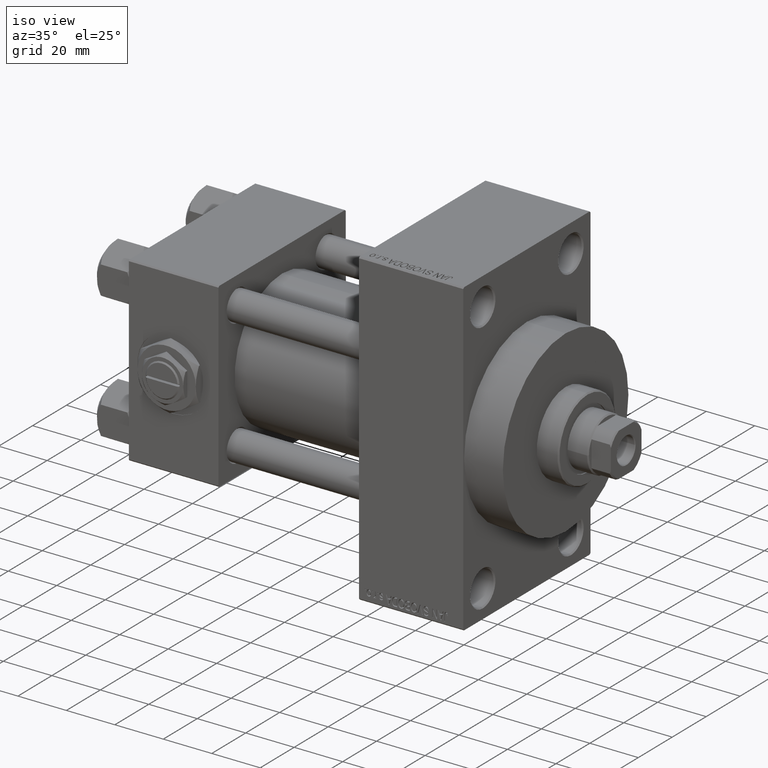
[diagram: clean part render]
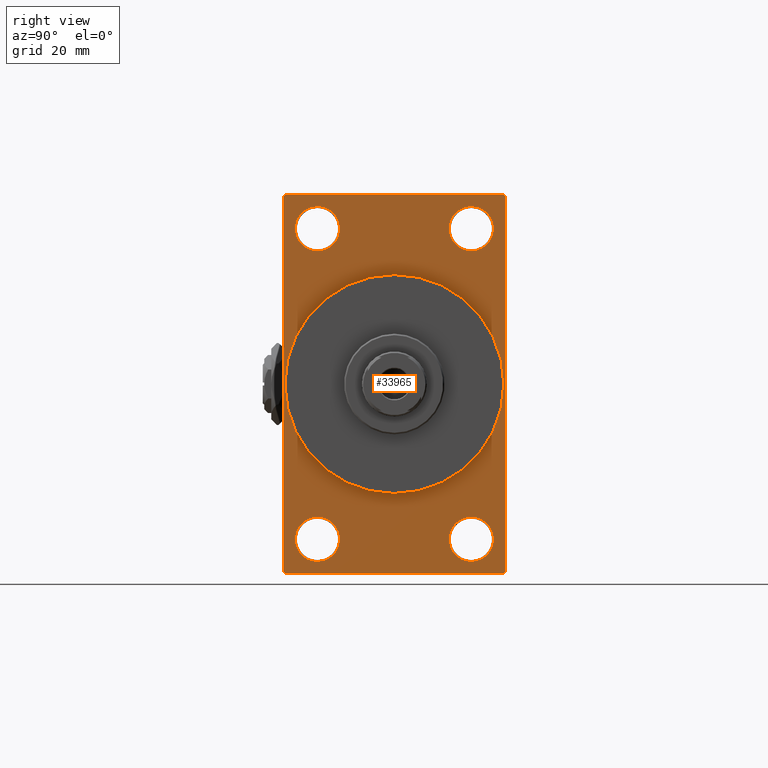
[diagram: tour spotlight — one face highlighted and labeled with its STEP entity id]
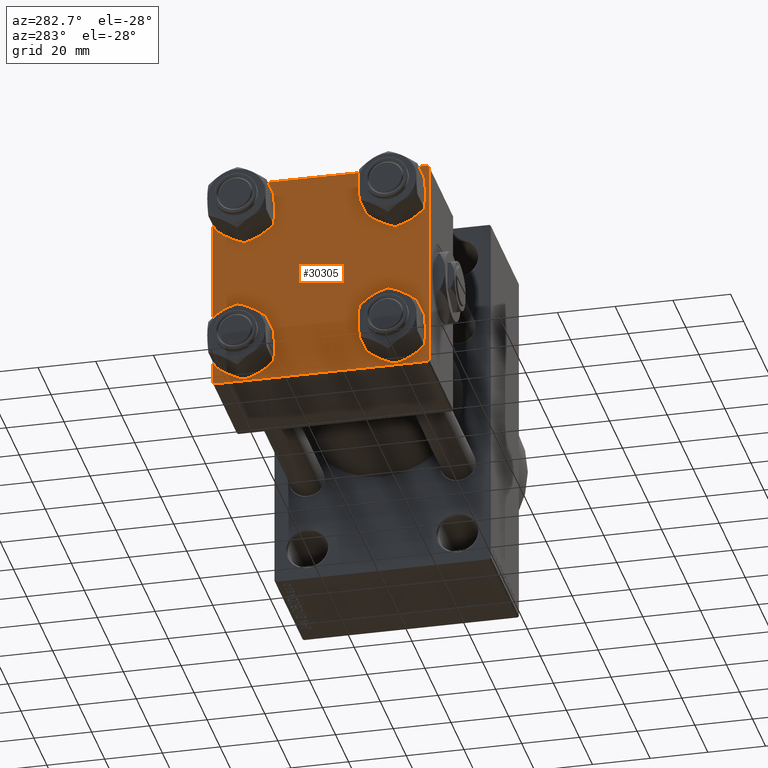
[diagram: tour spotlight — one face highlighted and labeled with its STEP entity id]
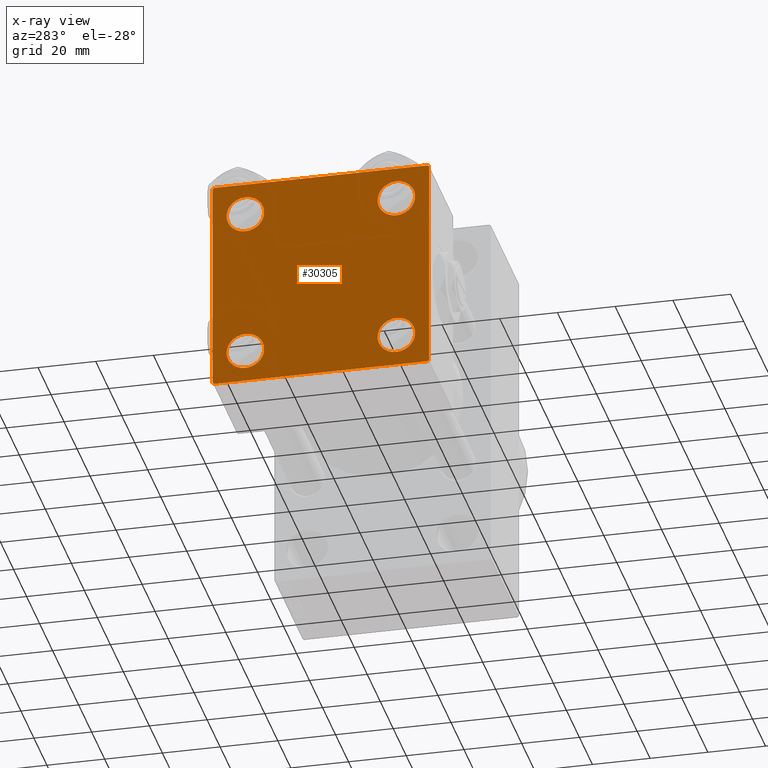
[diagram: x-ray of the same camera — body ghosted, this tour face saturated]
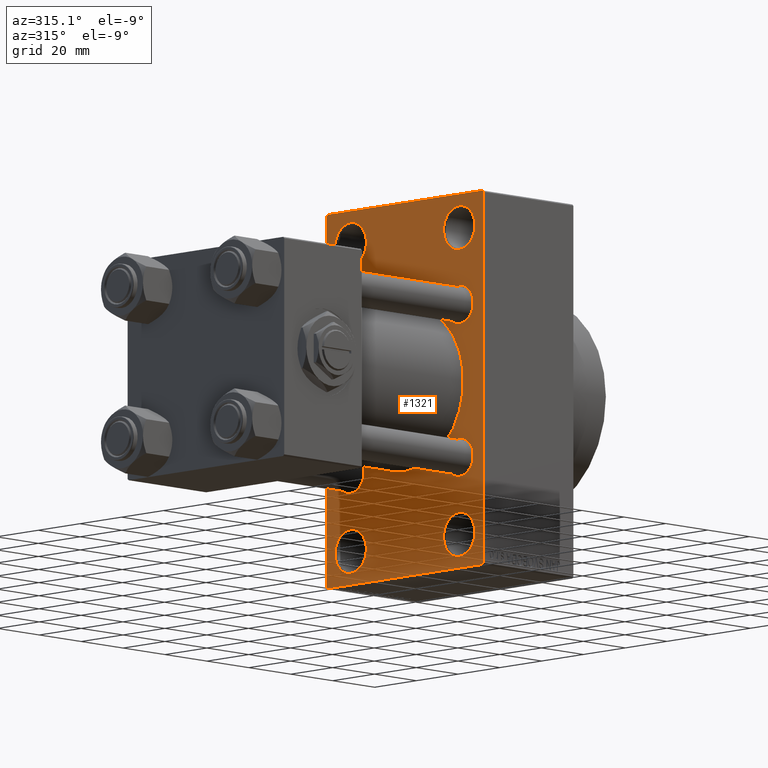
[diagram: tour spotlight — one face highlighted and labeled with its STEP entity id]
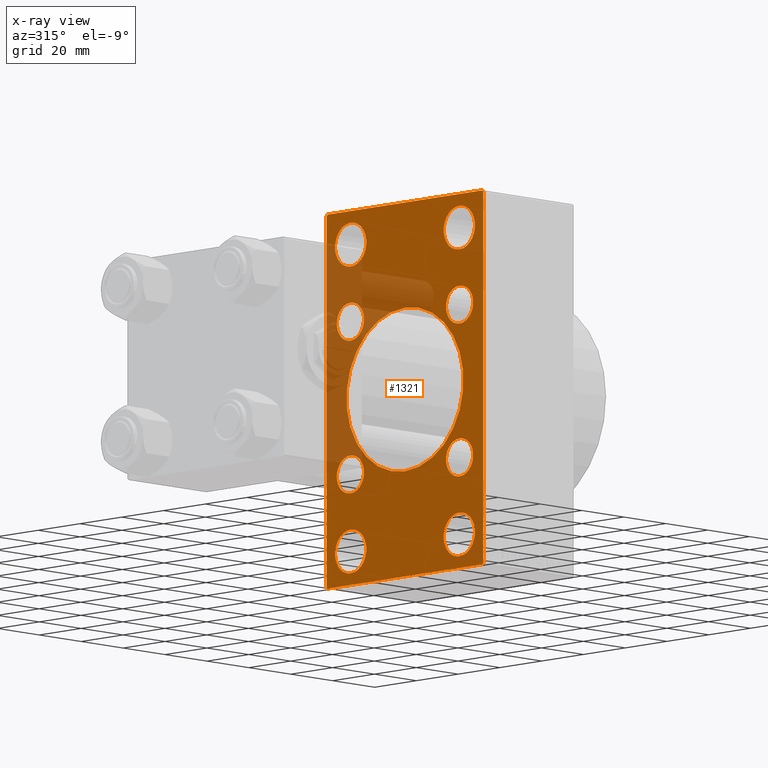
[diagram: x-ray of the same camera — body ghosted, this tour face saturated]
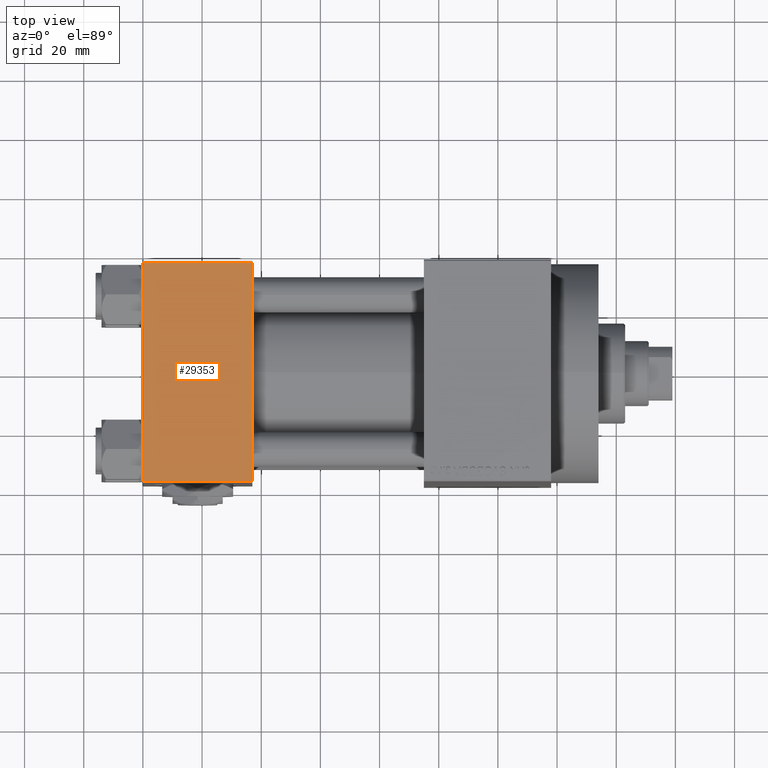
[diagram: tour spotlight — one face highlighted and labeled with its STEP entity id]
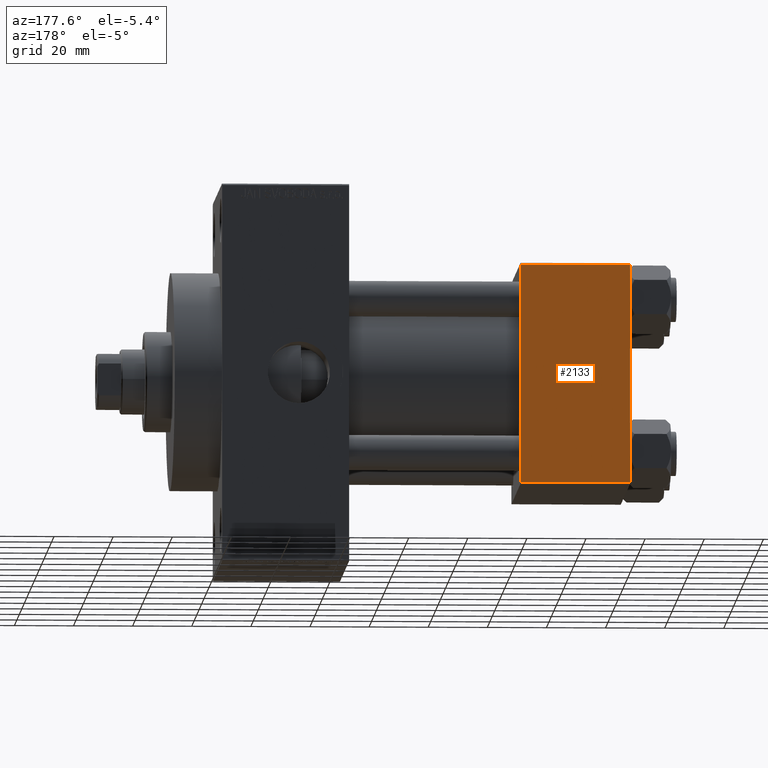
[diagram: tour spotlight — one face highlighted and labeled with its STEP entity id]
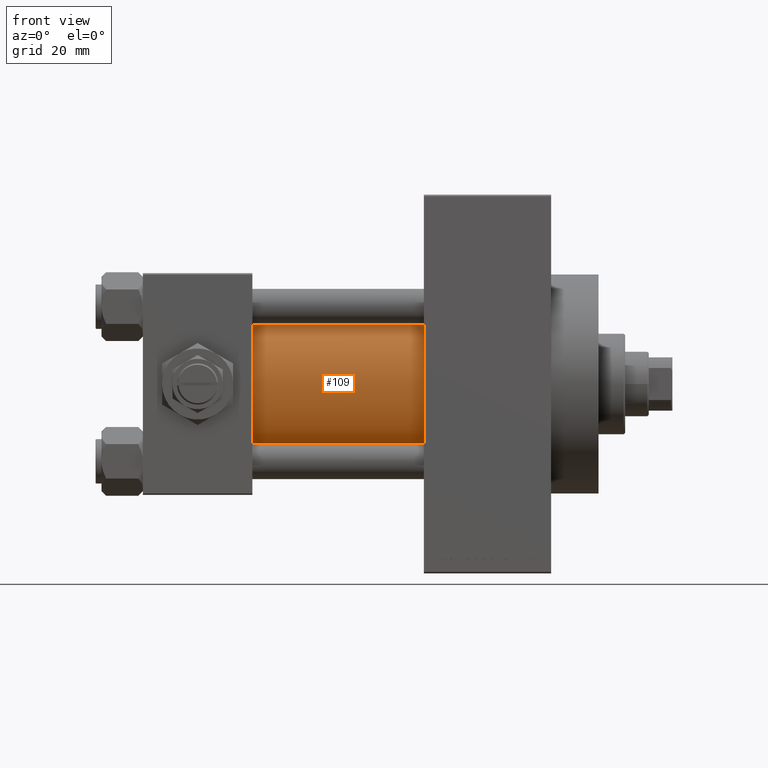
[diagram: tour spotlight — one face highlighted and labeled with its STEP entity id]
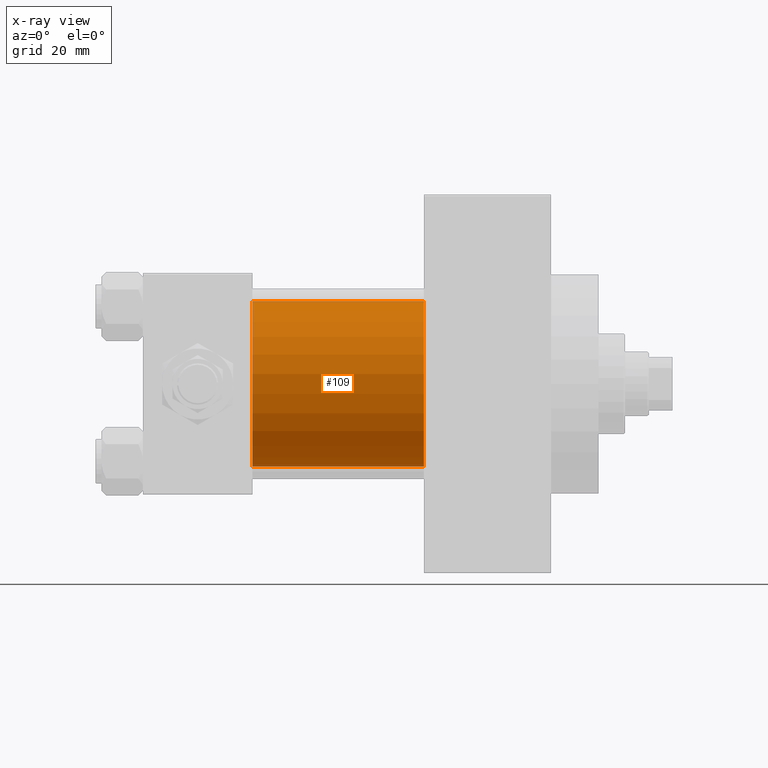
[diagram: x-ray of the same camera — body ghosted, this tour face saturated]
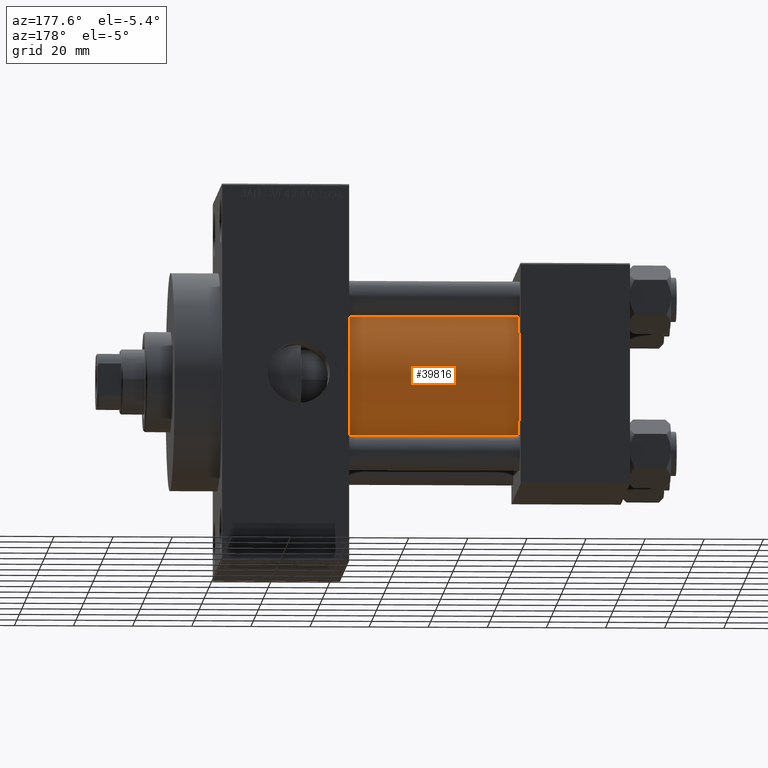
[diagram: tour spotlight — one face highlighted and labeled with its STEP entity id]
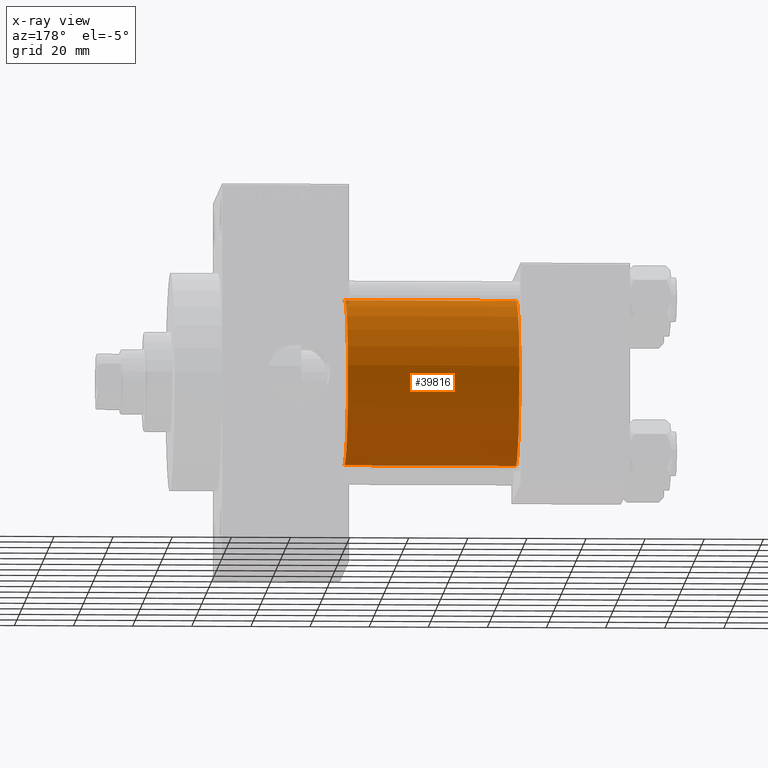
[diagram: x-ray of the same camera — body ghosted, this tour face saturated]
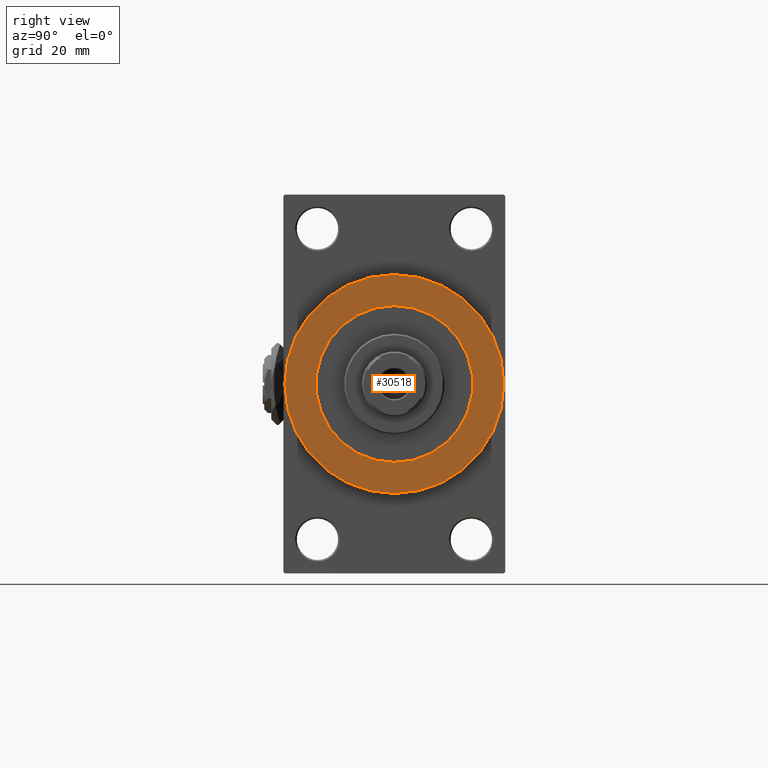
[diagram: tour spotlight — one face highlighted and labeled with its STEP entity id]
A machine part: a face-by-face anatomy tour. The part has 1146 B-rep faces; the first image is the clean iso view, then the 8 largest visible faces are spotlighted one at a time (largest first), each with its STEP entity span.

Face 1 — right view, entity #33965. In plain terms, the highlighted planar face has unit normal (-1, 0, 0).
Definition (entity closure, byte-faithful):
#349 = VERTEX_POINT ( 'NONE', #41088 ) ;
#931 = DIRECTION ( 'NONE',  ( 1.000000000000000000, 0.000000000000000000, 0.000000000000000000 ) ) ;
#1904 = DIRECTION ( 'NONE',  ( -1.000000000000000000, 0.000000000000000000, -0.000000000000000000 ) ) ;
#2076 = AXIS2_PLACEMENT_3D ( 'NONE', #31351, #36024, #2345 ) ;
#2345 = DIRECTION ( 'NONE',  ( 0.000000000000000000, 0.000000000000000000, 1.000000000000000000 ) ) ;
#2649 = DIRECTION ( 'NONE',  ( -1.000000000000000000, 0.000000000000000000, -0.000000000000000000 ) ) ;
#3101 = EDGE_CURVE ( 'NONE', #3772, #44370, #38713, .T. ) ;
#3623 = LINE ( 'NONE', #18358, #47415 ) ;
#3628 = CARTESIAN_POINT ( 'NONE',  ( 138.0000000000000000, -37.49999999999999289, -63.49999999999997158 ) ) ;
#3771 = DIRECTION ( 'NONE',  ( 0.000000000000000000, 0.000000000000000000, -1.000000000000000000 ) ) ;
#3772 = VERTEX_POINT ( 'NONE', #3628 ) ;
#4147 = CARTESIAN_POINT ( 'NONE',  ( 138.0000000000000000, 0.000000000000000000, 0.000000000000000000 ) ) ;
#4310 = CARTESIAN_POINT ( 'NONE',  ( 138.0000000000000000, 4.531193156845206793E-15, -37.00000000000000000 ) ) ;
#4698 = ORIENTED_EDGE ( 'NONE', *, *, #43429, .T. ) ;
#5001 = CARTESIAN_POINT ( 'NONE',  ( 138.0000000000000000, 37.49999999999999289, -64.00000000000000000 ) ) ;
#5153 = LINE ( 'NONE', #34247, #41823 ) ;
#5331 = CARTESIAN_POINT ( 'NONE',  ( 138.0000000000000000, 26.00000000000000000, -52.49999999999999289 ) ) ;
#5431 = CARTESIAN_POINT ( 'NONE',  ( 138.0000000000000000, -25.99999999999999645, 60.00000000000000711 ) ) ;
#5459 = CARTESIAN_POINT ( 'NONE',  ( 138.0000000000000000, 26.00000000000000000, 44.99999999999998579 ) ) ;
#5741 = LINE ( 'NONE', #39677, #13408 ) ;
#5813 = CARTESIAN_POINT ( 'NONE',  ( 138.0000000000000000, -25.99999999999999645, -52.49999999999999289 ) ) ;
#6234 = EDGE_LOOP ( 'NONE', ( #11009, #43945 ) ) ;
#6423 = EDGE_CURVE ( 'NONE', #349, #47471, #37841, .T. ) ;
#6725 = AXIS2_PLACEMENT_3D ( 'NONE', #4147, #931, #23535 ) ;
#7165 = ORIENTED_EDGE ( 'NONE', *, *, #12209, .T. ) ;
#7308 = CARTESIAN_POINT ( 'NONE',  ( 138.0000000000000000, -25.99999999999999645, -52.49999999999999289 ) ) ;
#7525 = CARTESIAN_POINT ( 'NONE',  ( 138.0000000000000000, -25.99999999999999645, -60.00000000000000000 ) ) ;
#7847 = VERTEX_POINT ( 'NONE', #10707 ) ;
#8142 = VECTOR ( 'NONE', #29738, 1000.000000000000000 ) ;
#8345 = AXIS2_PLACEMENT_3D ( 'NONE', #39783, #2649, #17620 ) ;
#8470 = CARTESIAN_POINT ( 'NONE',  ( 138.0000000000000000, -36.99999999999993605, -64.00000000000001421 ) ) ;
#9568 = LINE ( 'NONE', #16451, #29761 ) ;
#9789 = CIRCLE ( 'NONE', #37264, 37.00000000000000000 ) ;
#10707 = CARTESIAN_POINT ( 'NONE',  ( 138.0000000000000000, 36.99999999999997158, 63.99999999999998579 ) ) ;
#11009 = ORIENTED_EDGE ( 'NONE', *, *, #15140, .F. ) ;
#11042 = DIRECTION ( 'NONE',  ( 1.000000000000000000, 0.000000000000000000, 0.000000000000000000 ) ) ;
#11242 = EDGE_LOOP ( 'NONE', ( #41400, #24362, #16599, #13924, #18580, #44493, #4698, #40298 ) ) ;
#11367 = CARTESIAN_POINT ( 'NONE',  ( 138.0000000000000000, 36.99999999999999289, -64.00000000000000000 ) ) ;
#11609 = AXIS2_PLACEMENT_3D ( 'NONE', #41595, #21666, #48015 ) ;
#12203 = CARTESIAN_POINT ( 'NONE',  ( 138.0000000000000000, -37.49999999999999289, 63.49999999999994316 ) ) ;
#12209 = EDGE_CURVE ( 'NONE', #16763, #28019, #46716, .T. ) ;
#13319 = EDGE_CURVE ( 'NONE', #28019, #16763, #47524, .T. ) ;
#13352 = LINE ( 'NONE', #5001, #45191 ) ;
#13408 = VECTOR ( 'NONE', #23932, 1000.000000000000000 ) ;
#13623 = CARTESIAN_POINT ( 'NONE',  ( 138.0000000000000000, 37.49999999999999289, -63.50000000000001421 ) ) ;
#13713 = VERTEX_POINT ( 'NONE', #41100 ) ;
#13924 = ORIENTED_EDGE ( 'NONE', *, *, #14748, .T. ) ;
#14293 = FACE_BOUND ( 'NONE', #6234, .T. ) ;
#14317 = EDGE_CURVE ( 'NONE', #17305, #45362, #15327, .T. ) ;
#14494 = DIRECTION ( 'NONE',  ( 0.000000000000000000, 0.000000000000000000, -1.000000000000000000 ) ) ;
#14725 = CIRCLE ( 'NONE', #11609, 7.500000000000007105 ) ;
#14748 = EDGE_CURVE ( 'NONE', #43933, #13713, #17786, .T. ) ;
#14950 = ORIENTED_EDGE ( 'NONE', *, *, #23203, .T. ) ;
#14980 = DIRECTION ( 'NONE',  ( -1.000000000000000000, 0.000000000000000000, -0.000000000000000000 ) ) ;
#15140 = EDGE_CURVE ( 'NONE', #45600, #47622, #43647, .T. ) ;
#15271 = EDGE_LOOP ( 'NONE', ( #45413, #14950 ) ) ;
#15327 = CIRCLE ( 'NONE', #21605, 7.500000000000007105 ) ;
#15626 = CARTESIAN_POINT ( 'NONE',  ( 138.0000000000000000, 26.00000000000000000, 52.49999999999999289 ) ) ;
#16426 = EDGE_CURVE ( 'NONE', #39061, #36074, #25610, .T. ) ;
#16451 = CARTESIAN_POINT ( 'NONE',  ( 138.0000000000000000, 37.50000000000000000, 63.99999999999998579 ) ) ;
#16599 = ORIENTED_EDGE ( 'NONE', *, *, #46424, .F. ) ;
#16763 = VERTEX_POINT ( 'NONE', #37171 ) ;
#16872 = VECTOR ( 'NONE', #25658, 1000.000000000000000 ) ;
#17115 = DIRECTION ( 'NONE',  ( -1.000000000000000000, 0.000000000000000000, -0.000000000000000000 ) ) ;
#17305 = VERTEX_POINT ( 'NONE', #32860 ) ;
#17620 = DIRECTION ( 'NONE',  ( 0.000000000000000000, 0.000000000000000000, 1.000000000000000000 ) ) ;
#17701 = DIRECTION ( 'NONE',  ( 0.000000000000000000, 0.000000000000000000, 1.000000000000000000 ) ) ;
#17786 = LINE ( 'NONE', #13623, #16872 ) ;
#18216 = CARTESIAN_POINT ( 'NONE',  ( 138.0000000000000000, 0.000000000000000000, 0.000000000000000000 ) ) ;
#18250 = CARTESIAN_POINT ( 'NONE',  ( 138.0000000000000000, -36.99999999999995737, 63.99999999999997158 ) ) ;
#18358 = CARTESIAN_POINT ( 'NONE',  ( 138.0000000000000000, -37.49999999999999289, 63.49999999999994316 ) ) ;
#18428 = LINE ( 'NONE', #33432, #8142 ) ;
#18580 = ORIENTED_EDGE ( 'NONE', *, *, #28538, .F. ) ;
#19841 = DIRECTION ( 'NONE',  ( 0.000000000000000000, 0.000000000000000000, 1.000000000000000000 ) ) ;
#20254 = EDGE_CURVE ( 'NONE', #45362, #17305, #38995, .T. ) ;
#20422 = ORIENTED_EDGE ( 'NONE', *, *, #20254, .T. ) ;
#20490 = AXIS2_PLACEMENT_3D ( 'NONE', #18216, #33215, #48267 ) ;
#21110 = DIRECTION ( 'NONE',  ( 0.000000000000000000, -5.421010862427522170E-17, -1.000000000000000000 ) ) ;
#21605 = AXIS2_PLACEMENT_3D ( 'NONE', #5331, #1904, #19841 ) ;
#21666 = DIRECTION ( 'NONE',  ( -1.000000000000000000, 0.000000000000000000, -0.000000000000000000 ) ) ;
#22473 = EDGE_LOOP ( 'NONE', ( #39053, #7165 ) ) ;
#23086 = AXIS2_PLACEMENT_3D ( 'NONE', #7308, #26238, #41261 ) ;
#23203 = EDGE_CURVE ( 'NONE', #47471, #349, #14725, .T. ) ;
#23247 = DIRECTION ( 'NONE',  ( 0.000000000000000000, 0.000000000000000000, 1.000000000000000000 ) ) ;
#23466 = AXIS2_PLACEMENT_3D ( 'NONE', #15626, #35283, #23247 ) ;
#23535 = DIRECTION ( 'NONE',  ( 0.000000000000000000, 0.000000000000000000, -1.000000000000000000 ) ) ;
#23572 = CARTESIAN_POINT ( 'NONE',  ( 138.0000000000000000, -36.99999999999993605, -64.00000000000001421 ) ) ;
#23806 = VERTEX_POINT ( 'NONE', #43962 ) ;
#23932 = DIRECTION ( 'NONE',  ( 0.000000000000000000, -0.7071067811865672237, 0.7071067811865279218 ) ) ;
#24362 = ORIENTED_EDGE ( 'NONE', *, *, #3101, .T. ) ;
#24547 = EDGE_LOOP ( 'NONE', ( #25077, #20422 ) ) ;
#24661 = DIRECTION ( 'NONE',  ( 0.000000000000000000, -1.000000000000000000, -1.850371707708594563E-16 ) ) ;
#24739 = DIRECTION ( 'NONE',  ( 0.000000000000000000, 0.000000000000000000, 1.000000000000000000 ) ) ;
#25077 = ORIENTED_EDGE ( 'NONE', *, *, #14317, .T. ) ;
#25262 = AXIS2_PLACEMENT_3D ( 'NONE', #29497, #14980, #17701 ) ;
#25360 = FACE_BOUND ( 'NONE', #15271, .T. ) ;
#25602 = FACE_OUTER_BOUND ( 'NONE', #11242, .T. ) ;
#25610 = CIRCLE ( 'NONE', #2076, 7.500000000000007105 ) ;
#25658 = DIRECTION ( 'NONE',  ( -0.000000000000000000, 0.7071067811865573427, 0.7071067811865378028 ) ) ;
#26238 = DIRECTION ( 'NONE',  ( -1.000000000000000000, 0.000000000000000000, -0.000000000000000000 ) ) ;
#26277 = AXIS2_PLACEMENT_3D ( 'NONE', #5813, #17115, #24739 ) ;
#27158 = DIRECTION ( 'NONE',  ( 0.000000000000000000, 0.7071067811865574537, -0.7071067811865376918 ) ) ;
#28019 = VERTEX_POINT ( 'NONE', #7525 ) ;
#28141 = EDGE_CURVE ( 'NONE', #36074, #39061, #32107, .T. ) ;
#28216 = ORIENTED_EDGE ( 'NONE', *, *, #16426, .T. ) ;
#28538 = EDGE_CURVE ( 'NONE', #23806, #13713, #9568, .T. ) ;
#29497 = CARTESIAN_POINT ( 'NONE',  ( 138.0000000000000000, -25.99999999999999645, 52.50000000000000000 ) ) ;
#29738 = DIRECTION ( 'NONE',  ( 0.000000000000000000, -1.000000000000000000, -1.850371707708594563E-16 ) ) ;
#29761 = VECTOR ( 'NONE', #21110, 1000.000000000000000 ) ;
#31351 = CARTESIAN_POINT ( 'NONE',  ( 138.0000000000000000, 26.00000000000000000, 52.49999999999999289 ) ) ;
#32107 = CIRCLE ( 'NONE', #23466, 7.500000000000007105 ) ;
#32311 = ORIENTED_EDGE ( 'NONE', *, *, #28141, .T. ) ;
#32860 = CARTESIAN_POINT ( 'NONE',  ( 138.0000000000000000, 26.00000000000000000, -60.00000000000000000 ) ) ;
#32968 = FACE_BOUND ( 'NONE', #22473, .T. ) ;
#33185 = EDGE_CURVE ( 'NONE', #23806, #7847, #5741, .T. ) ;
#33215 = DIRECTION ( 'NONE',  ( -1.000000000000000000, 0.000000000000000000, -0.000000000000000000 ) ) ;
#33432 = CARTESIAN_POINT ( 'NONE',  ( 138.0000000000000000, 37.50000000000000000, 63.99999999999998579 ) ) ;
#33965 = ADVANCED_FACE ( 'NONE', ( #25360, #32968, #40379, #48013, #14293, #25602 ), #40619, .F. ) ;
#34247 = CARTESIAN_POINT ( 'NONE',  ( 138.0000000000000000, -37.49999999999999289, 63.99999999999997158 ) ) ;
#35283 = DIRECTION ( 'NONE',  ( -1.000000000000000000, 0.000000000000000000, -0.000000000000000000 ) ) ;
#35973 = CARTESIAN_POINT ( 'NONE',  ( 138.0000000000000000, 26.00000000000000000, 60.00000000000000000 ) ) ;
#36024 = DIRECTION ( 'NONE',  ( -1.000000000000000000, 0.000000000000000000, -0.000000000000000000 ) ) ;
#36074 = VERTEX_POINT ( 'NONE', #35973 ) ;
#36291 = VECTOR ( 'NONE', #27158, 999.9999999999998863 ) ;
#37171 = CARTESIAN_POINT ( 'NONE',  ( 138.0000000000000000, -25.99999999999999645, -44.99999999999998579 ) ) ;
#37264 = AXIS2_PLACEMENT_3D ( 'NONE', #48472, #11042, #14494 ) ;
#37841 = CIRCLE ( 'NONE', #25262, 7.500000000000007105 ) ;
#38713 = LINE ( 'NONE', #8470, #36291 ) ;
#38874 = VERTEX_POINT ( 'NONE', #12203 ) ;
#38995 = CIRCLE ( 'NONE', #8345, 7.500000000000007105 ) ;
#39053 = ORIENTED_EDGE ( 'NONE', *, *, #13319, .T. ) ;
#39061 = VERTEX_POINT ( 'NONE', #5459 ) ;
#39677 = CARTESIAN_POINT ( 'NONE',  ( 138.0000000000000000, 36.99999999999997158, 63.99999999999998579 ) ) ;
#39783 = CARTESIAN_POINT ( 'NONE',  ( 138.0000000000000000, 26.00000000000000000, -52.49999999999999289 ) ) ;
#40298 = ORIENTED_EDGE ( 'NONE', *, *, #42378, .T. ) ;
#40379 = FACE_BOUND ( 'NONE', #24547, .T. ) ;
#40619 = PLANE ( 'NONE',  #20490 ) ;
#40689 = EDGE_CURVE ( 'NONE', #38874, #3772, #5153, .T. ) ;
#41002 = DIRECTION ( 'NONE',  ( -0.000000000000000000, -0.7071067811865524577, -0.7071067811865426878 ) ) ;
#41088 = CARTESIAN_POINT ( 'NONE',  ( 138.0000000000000000, -25.99999999999999645, 44.99999999999999289 ) ) ;
#41100 = CARTESIAN_POINT ( 'NONE',  ( 138.0000000000000000, 37.49999999999999289, -63.50000000000001421 ) ) ;
#41261 = DIRECTION ( 'NONE',  ( 0.000000000000000000, 0.000000000000000000, 1.000000000000000000 ) ) ;
#41400 = ORIENTED_EDGE ( 'NONE', *, *, #40689, .T. ) ;
#41595 = CARTESIAN_POINT ( 'NONE',  ( 138.0000000000000000, -25.99999999999999645, 52.50000000000000000 ) ) ;
#41823 = VECTOR ( 'NONE', #3771, 1000.000000000000000 ) ;
#42378 = EDGE_CURVE ( 'NONE', #47312, #38874, #3623, .T. ) ;
#43429 = EDGE_CURVE ( 'NONE', #7847, #47312, #18428, .T. ) ;
#43647 = CIRCLE ( 'NONE', #6725, 37.00000000000000000 ) ;
#43660 = EDGE_LOOP ( 'NONE', ( #28216, #32311 ) ) ;
#43933 = VERTEX_POINT ( 'NONE', #11367 ) ;
#43945 = ORIENTED_EDGE ( 'NONE', *, *, #45599, .F. ) ;
#43962 = CARTESIAN_POINT ( 'NONE',  ( 138.0000000000000000, 37.50000000000000000, 63.49999999999998579 ) ) ;
#44280 = CARTESIAN_POINT ( 'NONE',  ( 138.0000000000000000, 0.000000000000000000, 37.00000000000000000 ) ) ;
#44370 = VERTEX_POINT ( 'NONE', #23572 ) ;
#44493 = ORIENTED_EDGE ( 'NONE', *, *, #33185, .T. ) ;
#45191 = VECTOR ( 'NONE', #24661, 1000.000000000000000 ) ;
#45362 = VERTEX_POINT ( 'NONE', #47845 ) ;
#45413 = ORIENTED_EDGE ( 'NONE', *, *, #6423, .T. ) ;
#45599 = EDGE_CURVE ( 'NONE', #47622, #45600, #9789, .T. ) ;
#45600 = VERTEX_POINT ( 'NONE', #44280 ) ;
#46424 = EDGE_CURVE ( 'NONE', #43933, #44370, #13352, .T. ) ;
#46716 = CIRCLE ( 'NONE', #23086, 7.500000000000007105 ) ;
#47312 = VERTEX_POINT ( 'NONE', #18250 ) ;
#47415 = VECTOR ( 'NONE', #41002, 1000.000000000000000 ) ;
#47471 = VERTEX_POINT ( 'NONE', #5431 ) ;
#47524 = CIRCLE ( 'NONE', #26277, 7.500000000000007105 ) ;
#47622 = VERTEX_POINT ( 'NONE', #4310 ) ;
#47845 = CARTESIAN_POINT ( 'NONE',  ( 138.0000000000000000, 26.00000000000000000, -44.99999999999998579 ) ) ;
#48013 = FACE_BOUND ( 'NONE', #43660, .T. ) ;
#48015 = DIRECTION ( 'NONE',  ( 0.000000000000000000, 0.000000000000000000, 1.000000000000000000 ) ) ;
#48267 = DIRECTION ( 'NONE',  ( -0.000000000000000000, 0.000000000000000000, 1.000000000000000000 ) ) ;
#48472 = CARTESIAN_POINT ( 'NONE',  ( 138.0000000000000000, 0.000000000000000000, 0.000000000000000000 ) ) ;

Face 2 — auxiliary view, entity #30305. An x-ray twin of the same camera follows (body ghosted, this face saturated) — the face is partly hidden behind the body. In plain terms, the highlighted planar face has unit normal (-1, 0, 0).
Definition (entity closure, byte-faithful):
#1016 = CARTESIAN_POINT ( 'NONE',  ( 0.000000000000000000, 26.14999999999999858, -26.15000000000000213 ) ) ;
#1252 = CIRCLE ( 'NONE', #23260, 6.500000000000023093 ) ;
#1972 = ORIENTED_EDGE ( 'NONE', *, *, #37370, .T. ) ;
#1981 = VERTEX_POINT ( 'NONE', #13180 ) ;
#2035 = EDGE_LOOP ( 'NONE', ( #41583, #40610 ) ) ;
#2040 = VERTEX_POINT ( 'NONE', #10452 ) ;
#2368 = CARTESIAN_POINT ( 'NONE',  ( 0.000000000000000000, -37.50000000000000711, 37.49999999999999289 ) ) ;
#2516 = DIRECTION ( 'NONE',  ( -1.000000000000000000, 0.000000000000000000, -0.000000000000000000 ) ) ;
#2875 = VERTEX_POINT ( 'NONE', #39019 ) ;
#2927 = DIRECTION ( 'NONE',  ( 1.000000000000000000, -0.000000000000000000, 0.000000000000000000 ) ) ;
#3211 = EDGE_CURVE ( 'NONE', #28643, #46000, #9916, .T. ) ;
#4002 = VECTOR ( 'NONE', #5929, 1000.000000000000000 ) ;
#4361 = DIRECTION ( 'NONE',  ( 0.000000000000000000, 0.000000000000000000, 1.000000000000000000 ) ) ;
#4392 = EDGE_CURVE ( 'NONE', #17837, #11744, #5686, .T. ) ;
#4448 = EDGE_CURVE ( 'NONE', #28643, #5463, #28793, .T. ) ;
#4810 = LINE ( 'NONE', #11710, #25059 ) ;
#5463 = VERTEX_POINT ( 'NONE', #6169 ) ;
#5494 = LINE ( 'NONE', #31803, #33258 ) ;
#5686 = CIRCLE ( 'NONE', #7147, 6.500000000000023093 ) ;
#5785 = CARTESIAN_POINT ( 'NONE',  ( 0.000000000000000000, 37.24999999999998579, -37.24999999999998579 ) ) ;
#5925 = CARTESIAN_POINT ( 'NONE',  ( 0.000000000000000000, -26.14999999999999147, 19.64999999999999147 ) ) ;
#5929 = DIRECTION ( 'NONE',  ( 0.000000000000000000, -1.000000000000000000, -9.251858538542971581E-17 ) ) ;
#6006 = CARTESIAN_POINT ( 'NONE',  ( 0.000000000000000000, -26.14999999999999147, -32.65000000000002700 ) ) ;
#6169 = CARTESIAN_POINT ( 'NONE',  ( 0.000000000000000000, -37.00000000000000711, 37.49999999999999289 ) ) ;
#6670 = PLANE ( 'NONE',  #14103 ) ;
#6872 = EDGE_CURVE ( 'NONE', #12179, #38377, #34706, .T. ) ;
#6971 = EDGE_CURVE ( 'NONE', #25371, #2875, #10941, .T. ) ;
#7147 = AXIS2_PLACEMENT_3D ( 'NONE', #8641, #27820, #27094 ) ;
#7816 = CARTESIAN_POINT ( 'NONE',  ( 0.000000000000000000, 26.14999999999999858, -26.15000000000000213 ) ) ;
#8157 = DIRECTION ( 'NONE',  ( 0.000000000000000000, 0.000000000000000000, 1.000000000000000000 ) ) ;
#8192 = ORIENTED_EDGE ( 'NONE', *, *, #4448, .F. ) ;
#8283 = VECTOR ( 'NONE', #40165, 1000.000000000000000 ) ;
#8641 = CARTESIAN_POINT ( 'NONE',  ( 0.000000000000000000, -26.14999999999999147, 26.15000000000000924 ) ) ;
#8992 = DIRECTION ( 'NONE',  ( -0.000000000000000000, -0.7071067811865474617, -0.7071067811865474617 ) ) ;
#9715 = LINE ( 'NONE', #24463, #17470 ) ;
#9916 = LINE ( 'NONE', #17287, #44953 ) ;
#9989 = DIRECTION ( 'NONE',  ( 0.000000000000000000, 0.000000000000000000, 1.000000000000000000 ) ) ;
#10113 = AXIS2_PLACEMENT_3D ( 'NONE', #14400, #17349, #9989 ) ;
#10120 = CARTESIAN_POINT ( 'NONE',  ( 0.000000000000000000, 0.000000000000000000, 0.000000000000000000 ) ) ;
#10363 = FACE_BOUND ( 'NONE', #39757, .T. ) ;
#10385 = VECTOR ( 'NONE', #10458, 1000.000000000000000 ) ;
#10452 = CARTESIAN_POINT ( 'NONE',  ( 0.000000000000000000, 26.14999999999999858, -32.65000000000001990 ) ) ;
#10458 = DIRECTION ( 'NONE',  ( 0.000000000000000000, 9.251858538542971581E-17, -1.000000000000000000 ) ) ;
#10556 = CIRCLE ( 'NONE', #38052, 6.500000000000015987 ) ;
#10878 = CARTESIAN_POINT ( 'NONE',  ( 0.000000000000000000, 37.49999999999999289, 37.50000000000000000 ) ) ;
#10941 = LINE ( 'NONE', #2368, #10385 ) ;
#11710 = CARTESIAN_POINT ( 'NONE',  ( -0.000000000000000000, -37.25000000000000000, 37.25000000000000000 ) ) ;
#11744 = VERTEX_POINT ( 'NONE', #5925 ) ;
#12179 = VERTEX_POINT ( 'NONE', #29920 ) ;
#12188 = LINE ( 'NONE', #5785, #44142 ) ;
#12947 = ORIENTED_EDGE ( 'NONE', *, *, #27570, .T. ) ;
#13180 = CARTESIAN_POINT ( 'NONE',  ( 0.000000000000000000, -37.00000000000002132, -37.50000000000000711 ) ) ;
#13827 = EDGE_CURVE ( 'NONE', #31615, #14825, #10556, .T. ) ;
#14007 = DIRECTION ( 'NONE',  ( 0.000000000000000000, 0.000000000000000000, 1.000000000000000000 ) ) ;
#14103 = AXIS2_PLACEMENT_3D ( 'NONE', #10120, #2516, #48270 ) ;
#14400 = CARTESIAN_POINT ( 'NONE',  ( 0.000000000000000000, -26.14999999999999147, -26.15000000000000924 ) ) ;
#14766 = VERTEX_POINT ( 'NONE', #21953 ) ;
#14825 = VERTEX_POINT ( 'NONE', #6006 ) ;
#15391 = CARTESIAN_POINT ( 'NONE',  ( 0.000000000000000000, 26.14999999999999858, -19.64999999999998792 ) ) ;
#15642 = CARTESIAN_POINT ( 'NONE',  ( 0.000000000000000000, 37.49999999999999289, 37.00000000000000000 ) ) ;
#15654 = AXIS2_PLACEMENT_3D ( 'NONE', #7816, #15916, #41767 ) ;
#15916 = DIRECTION ( 'NONE',  ( 1.000000000000000000, -0.000000000000000000, 0.000000000000000000 ) ) ;
#16199 = EDGE_CURVE ( 'NONE', #38377, #12179, #1252, .T. ) ;
#16430 = CIRCLE ( 'NONE', #15654, 6.500000000000015987 ) ;
#17182 = CARTESIAN_POINT ( 'NONE',  ( 0.000000000000000000, -26.14999999999999147, -26.15000000000000924 ) ) ;
#17287 = CARTESIAN_POINT ( 'NONE',  ( 0.000000000000000000, 37.24999999999999289, 37.24999999999999289 ) ) ;
#17349 = DIRECTION ( 'NONE',  ( 1.000000000000000000, -0.000000000000000000, 0.000000000000000000 ) ) ;
#17470 = VECTOR ( 'NONE', #47363, 1000.000000000000000 ) ;
#17837 = VERTEX_POINT ( 'NONE', #34146 ) ;
#19103 = DIRECTION ( 'NONE',  ( 1.000000000000000000, -0.000000000000000000, 0.000000000000000000 ) ) ;
#19129 = VERTEX_POINT ( 'NONE', #23982 ) ;
#19672 = CARTESIAN_POINT ( 'NONE',  ( 0.000000000000000000, 26.14999999999999858, 26.15000000000000213 ) ) ;
#20410 = VERTEX_POINT ( 'NONE', #15391 ) ;
#21188 = EDGE_LOOP ( 'NONE', ( #24155, #35972, #1972, #25374, #27583, #46801, #8192, #37456 ) ) ;
#21353 = CARTESIAN_POINT ( 'NONE',  ( 0.000000000000000000, 36.99999999999999289, 37.50000000000000000 ) ) ;
#21703 = DIRECTION ( 'NONE',  ( 0.000000000000000000, 0.7071067811865474617, -0.7071067811865474617 ) ) ;
#21853 = DIRECTION ( 'NONE',  ( 1.000000000000000000, -0.000000000000000000, 0.000000000000000000 ) ) ;
#21935 = LINE ( 'NONE', #10878, #8283 ) ;
#21953 = CARTESIAN_POINT ( 'NONE',  ( 0.000000000000000000, 37.49999999999999289, -36.99999999999998579 ) ) ;
#23260 = AXIS2_PLACEMENT_3D ( 'NONE', #19672, #21853, #14007 ) ;
#23379 = DIRECTION ( 'NONE',  ( 1.000000000000000000, -0.000000000000000000, 0.000000000000000000 ) ) ;
#23800 = EDGE_LOOP ( 'NONE', ( #31958, #38617 ) ) ;
#23982 = CARTESIAN_POINT ( 'NONE',  ( 0.000000000000000000, 36.99999999999997868, -37.50000000000000000 ) ) ;
#24155 = ORIENTED_EDGE ( 'NONE', *, *, #47286, .T. ) ;
#24463 = CARTESIAN_POINT ( 'NONE',  ( 0.000000000000000000, 37.49999999999999289, -37.50000000000000000 ) ) ;
#24535 = AXIS2_PLACEMENT_3D ( 'NONE', #37795, #19103, #4361 ) ;
#24639 = EDGE_CURVE ( 'NONE', #25371, #5463, #4810, .T. ) ;
#25059 = VECTOR ( 'NONE', #34808, 1000.000000000000114 ) ;
#25069 = CARTESIAN_POINT ( 'NONE',  ( 0.000000000000000000, -26.14999999999999147, -19.64999999999999503 ) ) ;
#25362 = FACE_BOUND ( 'NONE', #2035, .T. ) ;
#25371 = VERTEX_POINT ( 'NONE', #35398 ) ;
#25374 = ORIENTED_EDGE ( 'NONE', *, *, #43697, .T. ) ;
#27094 = DIRECTION ( 'NONE',  ( 0.000000000000000000, 0.000000000000000000, 1.000000000000000000 ) ) ;
#27547 = ORIENTED_EDGE ( 'NONE', *, *, #4392, .T. ) ;
#27570 = EDGE_CURVE ( 'NONE', #11744, #17837, #41511, .T. ) ;
#27583 = ORIENTED_EDGE ( 'NONE', *, *, #6971, .F. ) ;
#27820 = DIRECTION ( 'NONE',  ( 1.000000000000000000, -0.000000000000000000, 0.000000000000000000 ) ) ;
#28194 = CIRCLE ( 'NONE', #10113, 6.500000000000015987 ) ;
#28514 = CARTESIAN_POINT ( 'NONE',  ( 0.000000000000000000, -26.14999999999999147, 26.15000000000000924 ) ) ;
#28643 = VERTEX_POINT ( 'NONE', #21353 ) ;
#28793 = LINE ( 'NONE', #31743, #4002 ) ;
#28865 = EDGE_CURVE ( 'NONE', #14825, #31615, #28194, .T. ) ;
#29449 = EDGE_CURVE ( 'NONE', #2040, #20410, #16430, .T. ) ;
#29920 = CARTESIAN_POINT ( 'NONE',  ( 0.000000000000000000, 26.14999999999999858, 19.64999999999998437 ) ) ;
#29924 = CIRCLE ( 'NONE', #40964, 6.500000000000015987 ) ;
#30305 = ADVANCED_FACE ( 'NONE', ( #10363, #25362, #36191, #33217, #40134 ), #6670, .T. ) ;
#31615 = VERTEX_POINT ( 'NONE', #25069 ) ;
#31743 = CARTESIAN_POINT ( 'NONE',  ( 0.000000000000000000, 37.49999999999999289, 37.50000000000000000 ) ) ;
#31803 = CARTESIAN_POINT ( 'NONE',  ( 0.000000000000000000, -37.24999999999975842, -37.25000000000027001 ) ) ;
#31958 = ORIENTED_EDGE ( 'NONE', *, *, #16199, .T. ) ;
#32431 = DIRECTION ( 'NONE',  ( 0.000000000000000000, 0.000000000000000000, 1.000000000000000000 ) ) ;
#33217 = FACE_BOUND ( 'NONE', #23800, .T. ) ;
#33258 = VECTOR ( 'NONE', #46847, 1000.000000000000000 ) ;
#33622 = AXIS2_PLACEMENT_3D ( 'NONE', #28514, #40072, #32431 ) ;
#34146 = CARTESIAN_POINT ( 'NONE',  ( 0.000000000000000000, -26.14999999999999147, 32.65000000000003411 ) ) ;
#34706 = CIRCLE ( 'NONE', #24535, 6.500000000000023093 ) ;
#34808 = DIRECTION ( 'NONE',  ( -0.000000000000000000, 0.7071067811865474617, 0.7071067811865474617 ) ) ;
#35099 = ORIENTED_EDGE ( 'NONE', *, *, #29449, .T. ) ;
#35398 = CARTESIAN_POINT ( 'NONE',  ( 0.000000000000000000, -37.50000000000000711, 36.99999999999999289 ) ) ;
#35642 = EDGE_CURVE ( 'NONE', #14766, #19129, #12188, .T. ) ;
#35972 = ORIENTED_EDGE ( 'NONE', *, *, #35642, .T. ) ;
#36191 = FACE_BOUND ( 'NONE', #45058, .T. ) ;
#37370 = EDGE_CURVE ( 'NONE', #19129, #1981, #9715, .T. ) ;
#37456 = ORIENTED_EDGE ( 'NONE', *, *, #3211, .T. ) ;
#37795 = CARTESIAN_POINT ( 'NONE',  ( 0.000000000000000000, 26.14999999999999858, 26.15000000000000213 ) ) ;
#38052 = AXIS2_PLACEMENT_3D ( 'NONE', #17182, #2927, #40784 ) ;
#38377 = VERTEX_POINT ( 'NONE', #38446 ) ;
#38446 = CARTESIAN_POINT ( 'NONE',  ( 0.000000000000000000, 26.14999999999999858, 32.65000000000002700 ) ) ;
#38531 = EDGE_CURVE ( 'NONE', #20410, #2040, #29924, .T. ) ;
#38617 = ORIENTED_EDGE ( 'NONE', *, *, #6872, .T. ) ;
#39019 = CARTESIAN_POINT ( 'NONE',  ( 0.000000000000000000, -37.50000000000000000, -37.00000000000003553 ) ) ;
#39757 = EDGE_LOOP ( 'NONE', ( #27547, #12947 ) ) ;
#40072 = DIRECTION ( 'NONE',  ( 1.000000000000000000, -0.000000000000000000, 0.000000000000000000 ) ) ;
#40134 = FACE_OUTER_BOUND ( 'NONE', #21188, .T. ) ;
#40165 = DIRECTION ( 'NONE',  ( 0.000000000000000000, 0.000000000000000000, -1.000000000000000000 ) ) ;
#40610 = ORIENTED_EDGE ( 'NONE', *, *, #28865, .T. ) ;
#40784 = DIRECTION ( 'NONE',  ( 0.000000000000000000, 0.000000000000000000, 1.000000000000000000 ) ) ;
#40964 = AXIS2_PLACEMENT_3D ( 'NONE', #1016, #23379, #8157 ) ;
#41511 = CIRCLE ( 'NONE', #33622, 6.500000000000023093 ) ;
#41583 = ORIENTED_EDGE ( 'NONE', *, *, #13827, .T. ) ;
#41767 = DIRECTION ( 'NONE',  ( 0.000000000000000000, 0.000000000000000000, 1.000000000000000000 ) ) ;
#43697 = EDGE_CURVE ( 'NONE', #1981, #2875, #5494, .T. ) ;
#44142 = VECTOR ( 'NONE', #8992, 1000.000000000000114 ) ;
#44953 = VECTOR ( 'NONE', #21703, 1000.000000000000114 ) ;
#45058 = EDGE_LOOP ( 'NONE', ( #46907, #35099 ) ) ;
#46000 = VERTEX_POINT ( 'NONE', #15642 ) ;
#46801 = ORIENTED_EDGE ( 'NONE', *, *, #24639, .T. ) ;
#46847 = DIRECTION ( 'NONE',  ( 0.000000000000000000, -0.7071067811865524577, 0.7071067811865426878 ) ) ;
#46907 = ORIENTED_EDGE ( 'NONE', *, *, #38531, .T. ) ;
#47286 = EDGE_CURVE ( 'NONE', #46000, #14766, #21935, .T. ) ;
#47363 = DIRECTION ( 'NONE',  ( 0.000000000000000000, -1.000000000000000000, -9.251858538542972814E-17 ) ) ;
#48270 = DIRECTION ( 'NONE',  ( -0.000000000000000000, 0.000000000000000000, 1.000000000000000000 ) ) ;

Face 3 — auxiliary view, entity #1321. An x-ray twin of the same camera follows (body ghosted, this face saturated) — the face is partly hidden behind the body. In plain terms, the highlighted planar face has unit normal (-1, 0, 0).
Definition (entity closure, byte-faithful):
#457 = DIRECTION ( 'NONE',  ( 1.000000000000000000, -0.000000000000000000, 0.000000000000000000 ) ) ;
#461 = CIRCLE ( 'NONE', #27936, 28.00000000000000000 ) ;
#711 = CARTESIAN_POINT ( 'NONE',  ( 95.00000000000000000, -2.602085213965210642E-15, 0.000000000000000000 ) ) ;
#837 = EDGE_LOOP ( 'NONE', ( #4217, #15851 ) ) ;
#948 = DIRECTION ( 'NONE',  ( 0.000000000000000000, 0.000000000000000000, -1.000000000000000000 ) ) ;
#1013 = AXIS2_PLACEMENT_3D ( 'NONE', #15444, #457, #37824 ) ;
#1075 = DIRECTION ( 'NONE',  ( 0.000000000000000000, 0.000000000000000000, 1.000000000000000000 ) ) ;
#1255 = ORIENTED_EDGE ( 'NONE', *, *, #22011, .T. ) ;
#1318 = EDGE_CURVE ( 'NONE', #41899, #35052, #27582, .T. ) ;
#1321 = ADVANCED_FACE ( 'NONE', ( #23134, #38154, #20669, #1497, #28534, #24110, #4938, #43561, #31237, #31974 ), #8877, .T. ) ;
#1330 = CARTESIAN_POINT ( 'NONE',  ( 95.00000000000000000, 37.50000000000000000, 63.99999999999998579 ) ) ;
#1497 = FACE_BOUND ( 'NONE', #34724, .T. ) ;
#1518 = CARTESIAN_POINT ( 'NONE',  ( 95.00000000000000000, 26.14999999999999858, -19.64999999999999503 ) ) ;
#1862 = DIRECTION ( 'NONE',  ( 1.000000000000000000, -0.000000000000000000, 0.000000000000000000 ) ) ;
#1901 = AXIS2_PLACEMENT_3D ( 'NONE', #44294, #32464, #29264 ) ;
#2005 = CARTESIAN_POINT ( 'NONE',  ( 95.00000000000000000, -2.602085213965210642E-15, 0.000000000000000000 ) ) ;
#2471 = AXIS2_PLACEMENT_3D ( 'NONE', #45064, #26838, #8155 ) ;
#2652 = VERTEX_POINT ( 'NONE', #6824 ) ;
#2781 = LINE ( 'NONE', #47800, #29196 ) ;
#3155 = CARTESIAN_POINT ( 'NONE',  ( 95.00000000000000000, -25.99999999999999645, -45.00000000000001421 ) ) ;
#3237 = LINE ( 'NONE', #7658, #46076 ) ;
#3379 = EDGE_CURVE ( 'NONE', #41486, #28619, #42600, .T. ) ;
#3546 = EDGE_CURVE ( 'NONE', #17124, #31862, #2781, .T. ) ;
#4028 = EDGE_LOOP ( 'NONE', ( #29714, #27283 ) ) ;
#4061 = EDGE_CURVE ( 'NONE', #21002, #12808, #23446, .T. ) ;
#4183 = DIRECTION ( 'NONE',  ( 0.000000000000000000, 0.7071067811865672237, -0.7071067811865279218 ) ) ;
#4217 = ORIENTED_EDGE ( 'NONE', *, *, #12999, .T. ) ;
#4221 = ORIENTED_EDGE ( 'NONE', *, *, #12083, .T. ) ;
#4224 = VERTEX_POINT ( 'NONE', #21936 ) ;
#4938 = FACE_BOUND ( 'NONE', #27176, .T. ) ;
#5023 = CARTESIAN_POINT ( 'NONE',  ( 95.00000000000000000, 26.14999999999999858, -26.15000000000000213 ) ) ;
#5066 = VERTEX_POINT ( 'NONE', #42663 ) ;
#5246 = DIRECTION ( 'NONE',  ( 1.000000000000000000, -0.000000000000000000, 0.000000000000000000 ) ) ;
#5254 = DIRECTION ( 'NONE',  ( 0.000000000000000000, -5.421010862427522170E-17, -1.000000000000000000 ) ) ;
#5474 = DIRECTION ( 'NONE',  ( 0.000000000000000000, 0.000000000000000000, -1.000000000000000000 ) ) ;
#5858 = AXIS2_PLACEMENT_3D ( 'NONE', #9076, #34891, #35139 ) ;
#6022 = AXIS2_PLACEMENT_3D ( 'NONE', #11049, #48481, #33668 ) ;
#6382 = AXIS2_PLACEMENT_3D ( 'NONE', #9122, #20179, #16489 ) ;
#6824 = CARTESIAN_POINT ( 'NONE',  ( 95.00000000000000000, -2.602085213965210642E-15, 28.00000000000000000 ) ) ;
#6976 = VERTEX_POINT ( 'NONE', #21519 ) ;
#7076 = AXIS2_PLACEMENT_3D ( 'NONE', #711, #8332, #948 ) ;
#7658 = CARTESIAN_POINT ( 'NONE',  ( 95.00000000000000000, 37.49999999999999289, -64.00000000000000000 ) ) ;
#8045 = VECTOR ( 'NONE', #5254, 1000.000000000000000 ) ;
#8155 = DIRECTION ( 'NONE',  ( 0.000000000000000000, 0.000000000000000000, 1.000000000000000000 ) ) ;
#8284 = CIRCLE ( 'NONE', #41286, 6.500000000000008882 ) ;
#8332 = DIRECTION ( 'NONE',  ( 1.000000000000000000, 0.000000000000000000, 0.000000000000000000 ) ) ;
#8877 = PLANE ( 'NONE',  #6382 ) ;
#8931 = CARTESIAN_POINT ( 'NONE',  ( 95.00000000000000000, -37.49999999999999289, 63.99999999999997158 ) ) ;
#8989 = CARTESIAN_POINT ( 'NONE',  ( 95.00000000000000000, -26.14999999999999147, 26.15000000000000924 ) ) ;
#9076 = CARTESIAN_POINT ( 'NONE',  ( 95.00000000000000000, 26.14999999999999858, 26.15000000000000213 ) ) ;
#9122 = CARTESIAN_POINT ( 'NONE',  ( 95.00000000000000000, 0.000000000000000000, 0.000000000000000000 ) ) ;
#9422 = CARTESIAN_POINT ( 'NONE',  ( 95.00000000000000000, -25.99999999999999645, 52.50000000000000000 ) ) ;
#9694 = DIRECTION ( 'NONE',  ( 0.000000000000000000, 0.000000000000000000, 1.000000000000000000 ) ) ;
#9974 = DIRECTION ( 'NONE',  ( 1.000000000000000000, -0.000000000000000000, 0.000000000000000000 ) ) ;
#10013 = CARTESIAN_POINT ( 'NONE',  ( 95.00000000000000000, -26.14999999999999147, -32.65000000000001990 ) ) ;
#10035 = CARTESIAN_POINT ( 'NONE',  ( 95.00000000000000000, 26.00000000000000000, 52.49999999999999289 ) ) ;
#10979 = CARTESIAN_POINT ( 'NONE',  ( 95.00000000000000000, 26.14999999999999858, -32.65000000000001279 ) ) ;
#11049 = CARTESIAN_POINT ( 'NONE',  ( 95.00000000000000000, 26.00000000000000000, -52.49999999999999289 ) ) ;
#11225 = ORIENTED_EDGE ( 'NONE', *, *, #17573, .T. ) ;
#11298 = VECTOR ( 'NONE', #30045, 1000.000000000000000 ) ;
#11716 = EDGE_CURVE ( 'NONE', #36866, #4224, #39601, .T. ) ;
#11809 = EDGE_CURVE ( 'NONE', #17124, #21002, #19164, .T. ) ;
#12037 = ORIENTED_EDGE ( 'NONE', *, *, #1318, .T. ) ;
#12083 = EDGE_CURVE ( 'NONE', #4224, #36866, #27030, .T. ) ;
#12808 = VERTEX_POINT ( 'NONE', #43575 ) ;
#12900 = VERTEX_POINT ( 'NONE', #46241 ) ;
#12999 = EDGE_CURVE ( 'NONE', #6976, #26939, #13717, .T. ) ;
#13572 = CARTESIAN_POINT ( 'NONE',  ( 95.00000000000000000, -25.99999999999999645, 45.00000000000002132 ) ) ;
#13628 = CARTESIAN_POINT ( 'NONE',  ( 95.00000000000000000, -25.99999999999999645, -59.99999999999997158 ) ) ;
#13717 = CIRCLE ( 'NONE', #5858, 6.500000000000008882 ) ;
#14018 = ORIENTED_EDGE ( 'NONE', *, *, #16329, .T. ) ;
#14074 = DIRECTION ( 'NONE',  ( 0.000000000000000000, -1.000000000000000000, -1.850371707708594563E-16 ) ) ;
#14098 = DIRECTION ( 'NONE',  ( 1.000000000000000000, -0.000000000000000000, 0.000000000000000000 ) ) ;
#14352 = CARTESIAN_POINT ( 'NONE',  ( 95.00000000000000000, -26.14999999999999147, -19.65000000000000213 ) ) ;
#14626 = DIRECTION ( 'NONE',  ( 1.000000000000000000, -0.000000000000000000, 0.000000000000000000 ) ) ;
#14633 = ORIENTED_EDGE ( 'NONE', *, *, #3546, .F. ) ;
#14675 = CARTESIAN_POINT ( 'NONE',  ( 95.00000000000000000, -36.99999999999995737, 63.99999999999997158 ) ) ;
#15042 = CARTESIAN_POINT ( 'NONE',  ( 95.00000000000000000, 50.49999999999948841, -50.50000000000088107 ) ) ;
#15210 = EDGE_CURVE ( 'NONE', #48028, #24578, #8284, .T. ) ;
#15444 = CARTESIAN_POINT ( 'NONE',  ( 95.00000000000000000, -26.14999999999999147, -26.15000000000000924 ) ) ;
#15460 = CARTESIAN_POINT ( 'NONE',  ( 95.00000000000000000, 37.50000000000000000, 63.49999999999998579 ) ) ;
#15851 = ORIENTED_EDGE ( 'NONE', *, *, #42652, .T. ) ;
#16117 = VERTEX_POINT ( 'NONE', #20404 ) ;
#16329 = EDGE_CURVE ( 'NONE', #46980, #21443, #21674, .T. ) ;
#16339 = DIRECTION ( 'NONE',  ( 1.000000000000000000, -0.000000000000000000, 0.000000000000000000 ) ) ;
#16489 = DIRECTION ( 'NONE',  ( -0.000000000000000000, 0.000000000000000000, 1.000000000000000000 ) ) ;
#16669 = AXIS2_PLACEMENT_3D ( 'NONE', #47822, #14098, #9694 ) ;
#17124 = VERTEX_POINT ( 'NONE', #17916 ) ;
#17573 = EDGE_CURVE ( 'NONE', #34935, #12900, #3237, .T. ) ;
#17740 = AXIS2_PLACEMENT_3D ( 'NONE', #8989, #1862, #42944 ) ;
#17747 = ORIENTED_EDGE ( 'NONE', *, *, #34459, .T. ) ;
#17825 = CARTESIAN_POINT ( 'NONE',  ( 95.00000000000000000, -26.14999999999999147, 19.65000000000000213 ) ) ;
#17860 = DIRECTION ( 'NONE',  ( 0.000000000000000000, 0.000000000000000000, 1.000000000000000000 ) ) ;
#17916 = CARTESIAN_POINT ( 'NONE',  ( 95.00000000000000000, 36.99999999999997158, 63.99999999999998579 ) ) ;
#18092 = CARTESIAN_POINT ( 'NONE',  ( 95.00000000000000000, -25.99999999999999645, -52.49999999999999289 ) ) ;
#18098 = DIRECTION ( 'NONE',  ( 1.000000000000000000, -0.000000000000000000, 0.000000000000000000 ) ) ;
#18527 = CARTESIAN_POINT ( 'NONE',  ( 95.00000000000000000, 36.99999999999999289, -64.00000000000000000 ) ) ;
#18639 = ORIENTED_EDGE ( 'NONE', *, *, #20299, .T. ) ;
#18725 = LINE ( 'NONE', #15042, #11298 ) ;
#18837 = VECTOR ( 'NONE', #18950, 1000.000000000000000 ) ;
#18857 = VERTEX_POINT ( 'NONE', #32388 ) ;
#18950 = DIRECTION ( 'NONE',  ( -0.000000000000000000, 0.7071067811865524577, 0.7071067811865426878 ) ) ;
#19164 = LINE ( 'NONE', #37863, #48265 ) ;
#20179 = DIRECTION ( 'NONE',  ( -1.000000000000000000, 0.000000000000000000, -0.000000000000000000 ) ) ;
#20299 = EDGE_CURVE ( 'NONE', #27365, #37181, #28777, .T. ) ;
#20404 = CARTESIAN_POINT ( 'NONE',  ( 95.00000000000000000, 8.269258236473776482E-16, -28.00000000000000000 ) ) ;
#20669 = FACE_BOUND ( 'NONE', #23511, .T. ) ;
#20807 = CIRCLE ( 'NONE', #48330, 6.500000000000008882 ) ;
#21002 = VERTEX_POINT ( 'NONE', #15460 ) ;
#21443 = VERTEX_POINT ( 'NONE', #45122 ) ;
#21519 = CARTESIAN_POINT ( 'NONE',  ( 95.00000000000000000, 26.14999999999999858, 32.65000000000001990 ) ) ;
#21674 = CIRCLE ( 'NONE', #17740, 6.500000000000008882 ) ;
#21936 = CARTESIAN_POINT ( 'NONE',  ( 95.00000000000000000, 26.00000000000000000, 59.99999999999997158 ) ) ;
#21972 = EDGE_LOOP ( 'NONE', ( #44503, #14018 ) ) ;
#22011 = EDGE_CURVE ( 'NONE', #34448, #44749, #27230, .T. ) ;
#22014 = EDGE_LOOP ( 'NONE', ( #17747, #44344 ) ) ;
#22207 = DIRECTION ( 'NONE',  ( 0.000000000000000000, -0.7071067811865574537, 0.7071067811865376918 ) ) ;
#22227 = CARTESIAN_POINT ( 'NONE',  ( 95.00000000000000000, 26.14999999999999858, 26.15000000000000213 ) ) ;
#22311 = ORIENTED_EDGE ( 'NONE', *, *, #46419, .T. ) ;
#22391 = DIRECTION ( 'NONE',  ( 0.000000000000000000, -1.000000000000000000, -1.850371707708594563E-16 ) ) ;
#22744 = EDGE_LOOP ( 'NONE', ( #22311, #12037 ) ) ;
#22836 = AXIS2_PLACEMENT_3D ( 'NONE', #18092, #43960, #17860 ) ;
#23132 = ORIENTED_EDGE ( 'NONE', *, *, #11809, .T. ) ;
#23134 = FACE_BOUND ( 'NONE', #22744, .T. ) ;
#23228 = EDGE_LOOP ( 'NONE', ( #11225, #37084, #39428, #23649, #14633, #23132, #42747, #41303 ) ) ;
#23446 = LINE ( 'NONE', #1330, #8045 ) ;
#23511 = EDGE_LOOP ( 'NONE', ( #36118, #1255 ) ) ;
#23649 = ORIENTED_EDGE ( 'NONE', *, *, #31456, .T. ) ;
#23887 = AXIS2_PLACEMENT_3D ( 'NONE', #10035, #25028, #32884 ) ;
#24110 = FACE_BOUND ( 'NONE', #837, .T. ) ;
#24578 = VERTEX_POINT ( 'NONE', #10979 ) ;
#24855 = DIRECTION ( 'NONE',  ( 1.000000000000000000, 0.000000000000000000, 0.000000000000000000 ) ) ;
#25028 = DIRECTION ( 'NONE',  ( 1.000000000000000000, -0.000000000000000000, 0.000000000000000000 ) ) ;
#25763 = ORIENTED_EDGE ( 'NONE', *, *, #40960, .T. ) ;
#26075 = AXIS2_PLACEMENT_3D ( 'NONE', #38946, #5246, #1075 ) ;
#26419 = AXIS2_PLACEMENT_3D ( 'NONE', #30144, #18098, #37039 ) ;
#26831 = LINE ( 'NONE', #38872, #18837 ) ;
#26838 = DIRECTION ( 'NONE',  ( 1.000000000000000000, -0.000000000000000000, 0.000000000000000000 ) ) ;
#26939 = VERTEX_POINT ( 'NONE', #33814 ) ;
#27030 = CIRCLE ( 'NONE', #23887, 7.499999999999978684 ) ;
#27086 = ORIENTED_EDGE ( 'NONE', *, *, #11716, .T. ) ;
#27176 = EDGE_LOOP ( 'NONE', ( #35645, #35392 ) ) ;
#27230 = CIRCLE ( 'NONE', #6022, 7.499999999999978684 ) ;
#27283 = ORIENTED_EDGE ( 'NONE', *, *, #31738, .T. ) ;
#27365 = VERTEX_POINT ( 'NONE', #14352 ) ;
#27582 = CIRCLE ( 'NONE', #2471, 7.499999999999978684 ) ;
#27936 = AXIS2_PLACEMENT_3D ( 'NONE', #2005, #24855, #35934 ) ;
#27938 = DIRECTION ( 'NONE',  ( 0.000000000000000000, 0.000000000000000000, 1.000000000000000000 ) ) ;
#28534 = FACE_BOUND ( 'NONE', #21972, .T. ) ;
#28619 = VERTEX_POINT ( 'NONE', #3155 ) ;
#28777 = CIRCLE ( 'NONE', #26419, 6.500000000000008882 ) ;
#29196 = VECTOR ( 'NONE', #14074, 1000.000000000000000 ) ;
#29264 = DIRECTION ( 'NONE',  ( 0.000000000000000000, 0.000000000000000000, 1.000000000000000000 ) ) ;
#29268 = CIRCLE ( 'NONE', #1013, 6.500000000000008882 ) ;
#29298 = CIRCLE ( 'NONE', #42665, 6.500000000000008882 ) ;
#29596 = CARTESIAN_POINT ( 'NONE',  ( 95.00000000000000000, -50.49999999999945999, -50.50000000000086686 ) ) ;
#29714 = ORIENTED_EDGE ( 'NONE', *, *, #47387, .T. ) ;
#30045 = DIRECTION ( 'NONE',  ( -0.000000000000000000, -0.7071067811865573427, -0.7071067811865378028 ) ) ;
#30144 = CARTESIAN_POINT ( 'NONE',  ( 95.00000000000000000, -26.14999999999999147, -26.15000000000000924 ) ) ;
#31237 = FACE_BOUND ( 'NONE', #4028, .T. ) ;
#31322 = DIRECTION ( 'NONE',  ( 0.000000000000000000, 0.000000000000000000, 1.000000000000000000 ) ) ;
#31456 = EDGE_CURVE ( 'NONE', #18857, #31862, #26831, .T. ) ;
#31738 = EDGE_CURVE ( 'NONE', #16117, #2652, #41649, .T. ) ;
#31862 = VERTEX_POINT ( 'NONE', #14675 ) ;
#31974 = FACE_OUTER_BOUND ( 'NONE', #23228, .T. ) ;
#32261 = DIRECTION ( 'NONE',  ( 0.000000000000000000, 0.000000000000000000, 1.000000000000000000 ) ) ;
#32346 = CARTESIAN_POINT ( 'NONE',  ( 95.00000000000000000, 26.00000000000000000, -45.00000000000001421 ) ) ;
#32369 = CARTESIAN_POINT ( 'NONE',  ( 95.00000000000000000, 26.00000000000000000, -59.99999999999997158 ) ) ;
#32388 = CARTESIAN_POINT ( 'NONE',  ( 95.00000000000000000, -37.49999999999999289, 63.49999999999994316 ) ) ;
#32464 = DIRECTION ( 'NONE',  ( 1.000000000000000000, -0.000000000000000000, 0.000000000000000000 ) ) ;
#32884 = DIRECTION ( 'NONE',  ( 0.000000000000000000, 0.000000000000000000, 1.000000000000000000 ) ) ;
#33151 = CIRCLE ( 'NONE', #37093, 6.500000000000008882 ) ;
#33279 = LINE ( 'NONE', #29596, #37023 ) ;
#33478 = EDGE_LOOP ( 'NONE', ( #18639, #25763 ) ) ;
#33668 = DIRECTION ( 'NONE',  ( 0.000000000000000000, 0.000000000000000000, 1.000000000000000000 ) ) ;
#33814 = CARTESIAN_POINT ( 'NONE',  ( 95.00000000000000000, 26.14999999999999858, 19.64999999999999147 ) ) ;
#34448 = VERTEX_POINT ( 'NONE', #32369 ) ;
#34459 = EDGE_CURVE ( 'NONE', #28619, #41486, #40169, .T. ) ;
#34724 = EDGE_LOOP ( 'NONE', ( #4221, #27086 ) ) ;
#34891 = DIRECTION ( 'NONE',  ( 1.000000000000000000, -0.000000000000000000, 0.000000000000000000 ) ) ;
#34935 = VERTEX_POINT ( 'NONE', #18527 ) ;
#34953 = EDGE_CURVE ( 'NONE', #12900, #5066, #33279, .T. ) ;
#35052 = VERTEX_POINT ( 'NONE', #39412 ) ;
#35139 = DIRECTION ( 'NONE',  ( 0.000000000000000000, 0.000000000000000000, 1.000000000000000000 ) ) ;
#35392 = ORIENTED_EDGE ( 'NONE', *, *, #40414, .T. ) ;
#35645 = ORIENTED_EDGE ( 'NONE', *, *, #15210, .T. ) ;
#35923 = EDGE_CURVE ( 'NONE', #18857, #5066, #42639, .T. ) ;
#35934 = DIRECTION ( 'NONE',  ( 0.000000000000000000, 0.000000000000000000, -1.000000000000000000 ) ) ;
#36118 = ORIENTED_EDGE ( 'NONE', *, *, #40592, .T. ) ;
#36866 = VERTEX_POINT ( 'NONE', #46757 ) ;
#37023 = VECTOR ( 'NONE', #22207, 999.9999999999998863 ) ;
#37039 = DIRECTION ( 'NONE',  ( 0.000000000000000000, 0.000000000000000000, 1.000000000000000000 ) ) ;
#37084 = ORIENTED_EDGE ( 'NONE', *, *, #34953, .T. ) ;
#37093 = AXIS2_PLACEMENT_3D ( 'NONE', #5023, #16339, #31322 ) ;
#37181 = VERTEX_POINT ( 'NONE', #10013 ) ;
#37245 = DIRECTION ( 'NONE',  ( 0.000000000000000000, 0.000000000000000000, 1.000000000000000000 ) ) ;
#37824 = DIRECTION ( 'NONE',  ( 0.000000000000000000, 0.000000000000000000, 1.000000000000000000 ) ) ;
#37863 = CARTESIAN_POINT ( 'NONE',  ( 95.00000000000000000, 50.49999999999894840, 50.50000000000176215 ) ) ;
#38084 = AXIS2_PLACEMENT_3D ( 'NONE', #9422, #39429, #32261 ) ;
#38154 = FACE_BOUND ( 'NONE', #22014, .T. ) ;
#38872 = CARTESIAN_POINT ( 'NONE',  ( 95.00000000000000000, -50.49999999999970868, 50.50000000000040501 ) ) ;
#38946 = CARTESIAN_POINT ( 'NONE',  ( 95.00000000000000000, -25.99999999999999645, -52.49999999999999289 ) ) ;
#39250 = CARTESIAN_POINT ( 'NONE',  ( 95.00000000000000000, -26.14999999999999147, 26.15000000000000924 ) ) ;
#39412 = CARTESIAN_POINT ( 'NONE',  ( 95.00000000000000000, -25.99999999999999645, 59.99999999999997868 ) ) ;
#39428 = ORIENTED_EDGE ( 'NONE', *, *, #35923, .F. ) ;
#39429 = DIRECTION ( 'NONE',  ( 1.000000000000000000, -0.000000000000000000, 0.000000000000000000 ) ) ;
#39601 = CIRCLE ( 'NONE', #1901, 7.499999999999978684 ) ;
#39665 = CIRCLE ( 'NONE', #38084, 7.499999999999978684 ) ;
#40169 = CIRCLE ( 'NONE', #22836, 7.499999999999978684 ) ;
#40414 = EDGE_CURVE ( 'NONE', #24578, #48028, #33151, .T. ) ;
#40592 = EDGE_CURVE ( 'NONE', #44749, #34448, #42595, .T. ) ;
#40960 = EDGE_CURVE ( 'NONE', #37181, #27365, #29268, .T. ) ;
#41286 = AXIS2_PLACEMENT_3D ( 'NONE', #45470, #46689, #46933 ) ;
#41303 = ORIENTED_EDGE ( 'NONE', *, *, #43039, .T. ) ;
#41486 = VERTEX_POINT ( 'NONE', #13628 ) ;
#41649 = CIRCLE ( 'NONE', #7076, 28.00000000000000000 ) ;
#41899 = VERTEX_POINT ( 'NONE', #13572 ) ;
#42595 = CIRCLE ( 'NONE', #16669, 7.499999999999978684 ) ;
#42599 = VECTOR ( 'NONE', #5474, 1000.000000000000000 ) ;
#42600 = CIRCLE ( 'NONE', #26075, 7.499999999999978684 ) ;
#42639 = LINE ( 'NONE', #8931, #42599 ) ;
#42652 = EDGE_CURVE ( 'NONE', #26939, #6976, #29298, .T. ) ;
#42663 = CARTESIAN_POINT ( 'NONE',  ( 95.00000000000000000, -37.49999999999999289, -63.49999999999997158 ) ) ;
#42665 = AXIS2_PLACEMENT_3D ( 'NONE', #22227, #14626, #37245 ) ;
#42747 = ORIENTED_EDGE ( 'NONE', *, *, #4061, .T. ) ;
#42944 = DIRECTION ( 'NONE',  ( 0.000000000000000000, 0.000000000000000000, 1.000000000000000000 ) ) ;
#43039 = EDGE_CURVE ( 'NONE', #12808, #34935, #18725, .T. ) ;
#43561 = FACE_BOUND ( 'NONE', #33478, .T. ) ;
#43575 = CARTESIAN_POINT ( 'NONE',  ( 95.00000000000000000, 37.49999999999999289, -63.50000000000001421 ) ) ;
#43960 = DIRECTION ( 'NONE',  ( 1.000000000000000000, -0.000000000000000000, 0.000000000000000000 ) ) ;
#44294 = CARTESIAN_POINT ( 'NONE',  ( 95.00000000000000000, 26.00000000000000000, 52.49999999999999289 ) ) ;
#44344 = ORIENTED_EDGE ( 'NONE', *, *, #3379, .T. ) ;
#44503 = ORIENTED_EDGE ( 'NONE', *, *, #46884, .T. ) ;
#44749 = VERTEX_POINT ( 'NONE', #32346 ) ;
#45064 = CARTESIAN_POINT ( 'NONE',  ( 95.00000000000000000, -25.99999999999999645, 52.50000000000000000 ) ) ;
#45122 = CARTESIAN_POINT ( 'NONE',  ( 95.00000000000000000, -26.14999999999999147, 32.65000000000001990 ) ) ;
#45470 = CARTESIAN_POINT ( 'NONE',  ( 95.00000000000000000, 26.14999999999999858, -26.15000000000000213 ) ) ;
#46076 = VECTOR ( 'NONE', #22391, 1000.000000000000000 ) ;
#46241 = CARTESIAN_POINT ( 'NONE',  ( 95.00000000000000000, -36.99999999999993605, -64.00000000000001421 ) ) ;
#46419 = EDGE_CURVE ( 'NONE', #35052, #41899, #39665, .T. ) ;
#46689 = DIRECTION ( 'NONE',  ( 1.000000000000000000, -0.000000000000000000, 0.000000000000000000 ) ) ;
#46757 = CARTESIAN_POINT ( 'NONE',  ( 95.00000000000000000, 26.00000000000000000, 45.00000000000001421 ) ) ;
#46884 = EDGE_CURVE ( 'NONE', #21443, #46980, #20807, .T. ) ;
#46933 = DIRECTION ( 'NONE',  ( 0.000000000000000000, 0.000000000000000000, 1.000000000000000000 ) ) ;
#46980 = VERTEX_POINT ( 'NONE', #17825 ) ;
#47387 = EDGE_CURVE ( 'NONE', #2652, #16117, #461, .T. ) ;
#47800 = CARTESIAN_POINT ( 'NONE',  ( 95.00000000000000000, 37.50000000000000000, 63.99999999999998579 ) ) ;
#47822 = CARTESIAN_POINT ( 'NONE',  ( 95.00000000000000000, 26.00000000000000000, -52.49999999999999289 ) ) ;
#48028 = VERTEX_POINT ( 'NONE', #1518 ) ;
#48265 = VECTOR ( 'NONE', #4183, 1000.000000000000000 ) ;
#48330 = AXIS2_PLACEMENT_3D ( 'NONE', #39250, #9974, #27938 ) ;
#48481 = DIRECTION ( 'NONE',  ( 1.000000000000000000, -0.000000000000000000, 0.000000000000000000 ) ) ;

Face 4 — top view, entity #29353. In plain terms, the highlighted planar face has unit normal (0, 0, -1).
Definition (entity closure, byte-faithful):
#4002 = VECTOR ( 'NONE', #5929, 1000.000000000000000 ) ;
#4448 = EDGE_CURVE ( 'NONE', #28643, #5463, #28793, .T. ) ;
#4672 = VECTOR ( 'NONE', #24656, 1000.000000000000000 ) ;
#5463 = VERTEX_POINT ( 'NONE', #6169 ) ;
#5477 = LINE ( 'NONE', #46341, #4672 ) ;
#5929 = DIRECTION ( 'NONE',  ( 0.000000000000000000, -1.000000000000000000, -9.251858538542971581E-17 ) ) ;
#6169 = CARTESIAN_POINT ( 'NONE',  ( 0.000000000000000000, -37.00000000000000711, 37.49999999999999289 ) ) ;
#7101 = DIRECTION ( 'NONE',  ( -1.000000000000000000, 0.000000000000000000, 0.000000000000000000 ) ) ;
#8110 = ORIENTED_EDGE ( 'NONE', *, *, #4448, .T. ) ;
#8216 = EDGE_CURVE ( 'NONE', #5463, #28444, #13857, .T. ) ;
#10947 = AXIS2_PLACEMENT_3D ( 'NONE', #47467, #28749, #43776 ) ;
#11698 = EDGE_LOOP ( 'NONE', ( #8110, #13642, #16299, #21580 ) ) ;
#13642 = ORIENTED_EDGE ( 'NONE', *, *, #8216, .T. ) ;
#13857 = LINE ( 'NONE', #25884, #27723 ) ;
#16299 = ORIENTED_EDGE ( 'NONE', *, *, #25073, .F. ) ;
#17291 = DIRECTION ( 'NONE',  ( 1.000000000000000000, 0.000000000000000000, 0.000000000000000000 ) ) ;
#17423 = FACE_OUTER_BOUND ( 'NONE', #11698, .T. ) ;
#19035 = VERTEX_POINT ( 'NONE', #42459 ) ;
#20978 = EDGE_CURVE ( 'NONE', #19035, #28643, #48467, .T. ) ;
#21353 = CARTESIAN_POINT ( 'NONE',  ( 0.000000000000000000, 36.99999999999999289, 37.50000000000000000 ) ) ;
#21580 = ORIENTED_EDGE ( 'NONE', *, *, #20978, .T. ) ;
#24656 = DIRECTION ( 'NONE',  ( 0.000000000000000000, -1.000000000000000000, -9.251858538542971581E-17 ) ) ;
#25073 = EDGE_CURVE ( 'NONE', #19035, #28444, #5477, .T. ) ;
#25884 = CARTESIAN_POINT ( 'NONE',  ( 37.00000000000000000, -37.00000000000000711, 37.49999999999999289 ) ) ;
#27723 = VECTOR ( 'NONE', #17291, 1000.000000000000000 ) ;
#28444 = VERTEX_POINT ( 'NONE', #45278 ) ;
#28643 = VERTEX_POINT ( 'NONE', #21353 ) ;
#28749 = DIRECTION ( 'NONE',  ( 0.000000000000000000, 9.251858538542971581E-17, -1.000000000000000000 ) ) ;
#28793 = LINE ( 'NONE', #31743, #4002 ) ;
#29353 = ADVANCED_FACE ( 'NONE', ( #17423 ), #32424, .F. ) ;
#31743 = CARTESIAN_POINT ( 'NONE',  ( 0.000000000000000000, 37.49999999999999289, 37.50000000000000000 ) ) ;
#32424 = PLANE ( 'NONE',  #10947 ) ;
#33655 = CARTESIAN_POINT ( 'NONE',  ( 0.000000000000000000, 36.99999999999999289, 37.50000000000000000 ) ) ;
#42459 = CARTESIAN_POINT ( 'NONE',  ( 37.00000000000000000, 36.99999999999999289, 37.50000000000000000 ) ) ;
#43776 = DIRECTION ( 'NONE',  ( 0.000000000000000000, 1.000000000000000000, 9.251858538542971581E-17 ) ) ;
#45278 = CARTESIAN_POINT ( 'NONE',  ( 37.00000000000000000, -37.00000000000000711, 37.49999999999999289 ) ) ;
#46341 = CARTESIAN_POINT ( 'NONE',  ( 37.00000000000000000, 37.49999999999999289, 37.50000000000000000 ) ) ;
#47467 = CARTESIAN_POINT ( 'NONE',  ( 37.00000000000000000, 37.49999999999999289, 37.50000000000000000 ) ) ;
#47658 = VECTOR ( 'NONE', #7101, 1000.000000000000000 ) ;
#48467 = LINE ( 'NONE', #33655, #47658 ) ;

Face 5 — auxiliary view, entity #2133. In plain terms, the highlighted planar face has unit normal (0, 1, 0).
Definition (entity closure, byte-faithful):
#1011 = DIRECTION ( 'NONE',  ( 1.000000000000000000, 0.000000000000000000, 0.000000000000000000 ) ) ;
#1479 = LINE ( 'NONE', #43061, #2034 ) ;
#2034 = VECTOR ( 'NONE', #27064, 1000.000000000000000 ) ;
#2133 = ADVANCED_FACE ( 'NONE', ( #18966 ), #16007, .T. ) ;
#4236 = CARTESIAN_POINT ( 'NONE',  ( 37.00000000000000000, 37.49999999999999289, 37.50000000000000000 ) ) ;
#4694 = LINE ( 'NONE', #34692, #18209 ) ;
#7634 = CARTESIAN_POINT ( 'NONE',  ( 37.00000000000000000, 37.49999999999999289, -36.99999999999998579 ) ) ;
#7950 = ORIENTED_EDGE ( 'NONE', *, *, #19849, .T. ) ;
#8012 = CARTESIAN_POINT ( 'NONE',  ( 37.00000000000000000, 37.49999999999999289, -36.99999999999998579 ) ) ;
#8283 = VECTOR ( 'NONE', #40165, 1000.000000000000000 ) ;
#10878 = CARTESIAN_POINT ( 'NONE',  ( 0.000000000000000000, 37.49999999999999289, 37.50000000000000000 ) ) ;
#11841 = DIRECTION ( 'NONE',  ( -0.000000000000000000, 1.000000000000000000, 0.000000000000000000 ) ) ;
#14766 = VERTEX_POINT ( 'NONE', #21953 ) ;
#15466 = EDGE_LOOP ( 'NONE', ( #7950, #19877, #23323, #37278 ) ) ;
#15642 = CARTESIAN_POINT ( 'NONE',  ( 0.000000000000000000, 37.49999999999999289, 37.00000000000000000 ) ) ;
#16007 = PLANE ( 'NONE',  #29160 ) ;
#18209 = VECTOR ( 'NONE', #1011, 1000.000000000000000 ) ;
#18966 = FACE_OUTER_BOUND ( 'NONE', #15466, .T. ) ;
#19313 = LINE ( 'NONE', #8012, #21407 ) ;
#19849 = EDGE_CURVE ( 'NONE', #29214, #25659, #1479, .T. ) ;
#19877 = ORIENTED_EDGE ( 'NONE', *, *, #41307, .T. ) ;
#21407 = VECTOR ( 'NONE', #48626, 1000.000000000000000 ) ;
#21935 = LINE ( 'NONE', #10878, #8283 ) ;
#21953 = CARTESIAN_POINT ( 'NONE',  ( 0.000000000000000000, 37.49999999999999289, -36.99999999999998579 ) ) ;
#23323 = ORIENTED_EDGE ( 'NONE', *, *, #47286, .F. ) ;
#23616 = DIRECTION ( 'NONE',  ( 0.000000000000000000, -0.000000000000000000, 1.000000000000000000 ) ) ;
#23832 = CARTESIAN_POINT ( 'NONE',  ( 37.00000000000000000, 37.49999999999999289, 37.00000000000000000 ) ) ;
#25659 = VERTEX_POINT ( 'NONE', #7634 ) ;
#27064 = DIRECTION ( 'NONE',  ( 0.000000000000000000, 0.000000000000000000, -1.000000000000000000 ) ) ;
#29160 = AXIS2_PLACEMENT_3D ( 'NONE', #4236, #11841, #23616 ) ;
#29214 = VERTEX_POINT ( 'NONE', #23832 ) ;
#34692 = CARTESIAN_POINT ( 'NONE',  ( 37.00000000000000000, 37.49999999999999289, 37.00000000000000000 ) ) ;
#36302 = EDGE_CURVE ( 'NONE', #46000, #29214, #4694, .T. ) ;
#37278 = ORIENTED_EDGE ( 'NONE', *, *, #36302, .T. ) ;
#40165 = DIRECTION ( 'NONE',  ( 0.000000000000000000, 0.000000000000000000, -1.000000000000000000 ) ) ;
#41307 = EDGE_CURVE ( 'NONE', #25659, #14766, #19313, .T. ) ;
#43061 = CARTESIAN_POINT ( 'NONE',  ( 37.00000000000000000, 37.49999999999999289, 37.50000000000000000 ) ) ;
#46000 = VERTEX_POINT ( 'NONE', #15642 ) ;
#47286 = EDGE_CURVE ( 'NONE', #46000, #14766, #21935, .T. ) ;
#48626 = DIRECTION ( 'NONE',  ( -1.000000000000000000, 0.000000000000000000, 0.000000000000000000 ) ) ;

Face 6 — front view, entity #109. An x-ray twin of the same camera follows (body ghosted, this face saturated) — the face is partly hidden behind the body. In plain terms, the highlighted cylindrical surface (partial cylindrical patch) has radius 28 mm, axis along (-1, -0, -0).
Definition (entity closure, byte-faithful):
#109 = ADVANCED_FACE ( 'NONE', ( #24699 ), #39951, .T. ) ;
#461 = CIRCLE ( 'NONE', #27936, 28.00000000000000000 ) ;
#2005 = CARTESIAN_POINT ( 'NONE',  ( 95.00000000000000000, -2.602085213965210642E-15, 0.000000000000000000 ) ) ;
#2428 = CARTESIAN_POINT ( 'NONE',  ( 37.00000000000000000, -2.602085213965210642E-15, 0.000000000000000000 ) ) ;
#2652 = VERTEX_POINT ( 'NONE', #6824 ) ;
#2817 = DIRECTION ( 'NONE',  ( -1.000000000000000000, -0.000000000000000000, -0.000000000000000000 ) ) ;
#4866 = EDGE_CURVE ( 'NONE', #41759, #27660, #14240, .T. ) ;
#5458 = CARTESIAN_POINT ( 'NONE',  ( 37.00000000000000000, -2.602085213965210642E-15, 28.00000000000000000 ) ) ;
#6122 = ORIENTED_EDGE ( 'NONE', *, *, #11370, .F. ) ;
#6824 = CARTESIAN_POINT ( 'NONE',  ( 95.00000000000000000, -2.602085213965210642E-15, 28.00000000000000000 ) ) ;
#11370 = EDGE_CURVE ( 'NONE', #16117, #27660, #29072, .T. ) ;
#11549 = EDGE_CURVE ( 'NONE', #2652, #41759, #31003, .T. ) ;
#12665 = AXIS2_PLACEMENT_3D ( 'NONE', #2428, #35876, #39814 ) ;
#13409 = AXIS2_PLACEMENT_3D ( 'NONE', #28875, #2817, #21013 ) ;
#14240 = CIRCLE ( 'NONE', #12665, 28.00000000000000000 ) ;
#16117 = VERTEX_POINT ( 'NONE', #20404 ) ;
#20192 = ORIENTED_EDGE ( 'NONE', *, *, #47387, .F. ) ;
#20404 = CARTESIAN_POINT ( 'NONE',  ( 95.00000000000000000, 8.269258236473776482E-16, -28.00000000000000000 ) ) ;
#21013 = DIRECTION ( 'NONE',  ( 0.000000000000000000, 0.000000000000000000, 1.000000000000000000 ) ) ;
#23850 = VECTOR ( 'NONE', #48300, 1000.000000000000000 ) ;
#24699 = FACE_OUTER_BOUND ( 'NONE', #32021, .T. ) ;
#24855 = DIRECTION ( 'NONE',  ( 1.000000000000000000, 0.000000000000000000, 0.000000000000000000 ) ) ;
#25439 = VECTOR ( 'NONE', #27091, 1000.000000000000000 ) ;
#27091 = DIRECTION ( 'NONE',  ( -1.000000000000000000, -0.000000000000000000, -0.000000000000000000 ) ) ;
#27660 = VERTEX_POINT ( 'NONE', #37340 ) ;
#27936 = AXIS2_PLACEMENT_3D ( 'NONE', #2005, #24855, #35934 ) ;
#28706 = ORIENTED_EDGE ( 'NONE', *, *, #11549, .T. ) ;
#28875 = CARTESIAN_POINT ( 'NONE',  ( 95.00000000000000000, -2.602085213965210642E-15, 0.000000000000000000 ) ) ;
#29072 = LINE ( 'NONE', #40407, #23850 ) ;
#31003 = LINE ( 'NONE', #47021, #25439 ) ;
#32021 = EDGE_LOOP ( 'NONE', ( #6122, #20192, #28706, #46156 ) ) ;
#35876 = DIRECTION ( 'NONE',  ( 1.000000000000000000, -0.000000000000000000, 0.000000000000000000 ) ) ;
#35934 = DIRECTION ( 'NONE',  ( 0.000000000000000000, 0.000000000000000000, -1.000000000000000000 ) ) ;
#37340 = CARTESIAN_POINT ( 'NONE',  ( 37.00000000000000000, 8.269258236473776482E-16, -28.00000000000000000 ) ) ;
#39814 = DIRECTION ( 'NONE',  ( 0.000000000000000000, 0.000000000000000000, 1.000000000000000000 ) ) ;
#39951 = CYLINDRICAL_SURFACE ( 'NONE', #13409, 28.00000000000000000 ) ;
#40407 = CARTESIAN_POINT ( 'NONE',  ( 95.00000000000000000, 8.269258236473776482E-16, -28.00000000000000000 ) ) ;
#41759 = VERTEX_POINT ( 'NONE', #5458 ) ;
#46156 = ORIENTED_EDGE ( 'NONE', *, *, #4866, .T. ) ;
#47021 = CARTESIAN_POINT ( 'NONE',  ( 95.00000000000000000, -2.602085213965210642E-15, 28.00000000000000000 ) ) ;
#47387 = EDGE_CURVE ( 'NONE', #2652, #16117, #461, .T. ) ;
#48300 = DIRECTION ( 'NONE',  ( -1.000000000000000000, -0.000000000000000000, -0.000000000000000000 ) ) ;

Face 7 — auxiliary view, entity #39816. An x-ray twin of the same camera follows (body ghosted, this face saturated) — the face is partly hidden behind the body. In plain terms, the highlighted cylindrical surface (partial cylindrical patch) has radius 28 mm, axis along (-1, -0, -0).
Definition (entity closure, byte-faithful):
#227 = EDGE_CURVE ( 'NONE', #27660, #41759, #26745, .T. ) ;
#711 = CARTESIAN_POINT ( 'NONE',  ( 95.00000000000000000, -2.602085213965210642E-15, 0.000000000000000000 ) ) ;
#948 = DIRECTION ( 'NONE',  ( 0.000000000000000000, 0.000000000000000000, -1.000000000000000000 ) ) ;
#1463 = DIRECTION ( 'NONE',  ( -1.000000000000000000, -0.000000000000000000, -0.000000000000000000 ) ) ;
#2652 = VERTEX_POINT ( 'NONE', #6824 ) ;
#5458 = CARTESIAN_POINT ( 'NONE',  ( 37.00000000000000000, -2.602085213965210642E-15, 28.00000000000000000 ) ) ;
#5630 = FACE_OUTER_BOUND ( 'NONE', #18381, .T. ) ;
#6340 = AXIS2_PLACEMENT_3D ( 'NONE', #18278, #10907, #37466 ) ;
#6824 = CARTESIAN_POINT ( 'NONE',  ( 95.00000000000000000, -2.602085213965210642E-15, 28.00000000000000000 ) ) ;
#7076 = AXIS2_PLACEMENT_3D ( 'NONE', #711, #8332, #948 ) ;
#7222 = ORIENTED_EDGE ( 'NONE', *, *, #31738, .F. ) ;
#8332 = DIRECTION ( 'NONE',  ( 1.000000000000000000, 0.000000000000000000, 0.000000000000000000 ) ) ;
#9083 = CARTESIAN_POINT ( 'NONE',  ( 95.00000000000000000, -2.602085213965210642E-15, 0.000000000000000000 ) ) ;
#9807 = CYLINDRICAL_SURFACE ( 'NONE', #21369, 28.00000000000000000 ) ;
#10907 = DIRECTION ( 'NONE',  ( 1.000000000000000000, -0.000000000000000000, 0.000000000000000000 ) ) ;
#11370 = EDGE_CURVE ( 'NONE', #16117, #27660, #29072, .T. ) ;
#11549 = EDGE_CURVE ( 'NONE', #2652, #41759, #31003, .T. ) ;
#13234 = ORIENTED_EDGE ( 'NONE', *, *, #11549, .F. ) ;
#16117 = VERTEX_POINT ( 'NONE', #20404 ) ;
#18278 = CARTESIAN_POINT ( 'NONE',  ( 37.00000000000000000, -2.602085213965210642E-15, 0.000000000000000000 ) ) ;
#18381 = EDGE_LOOP ( 'NONE', ( #7222, #22936, #24708, #13234 ) ) ;
#20404 = CARTESIAN_POINT ( 'NONE',  ( 95.00000000000000000, 8.269258236473776482E-16, -28.00000000000000000 ) ) ;
#21369 = AXIS2_PLACEMENT_3D ( 'NONE', #9083, #1463, #35885 ) ;
#22936 = ORIENTED_EDGE ( 'NONE', *, *, #11370, .T. ) ;
#23850 = VECTOR ( 'NONE', #48300, 1000.000000000000000 ) ;
#24708 = ORIENTED_EDGE ( 'NONE', *, *, #227, .T. ) ;
#25439 = VECTOR ( 'NONE', #27091, 1000.000000000000000 ) ;
#26745 = CIRCLE ( 'NONE', #6340, 28.00000000000000000 ) ;
#27091 = DIRECTION ( 'NONE',  ( -1.000000000000000000, -0.000000000000000000, -0.000000000000000000 ) ) ;
#27660 = VERTEX_POINT ( 'NONE', #37340 ) ;
#29072 = LINE ( 'NONE', #40407, #23850 ) ;
#31003 = LINE ( 'NONE', #47021, #25439 ) ;
#31738 = EDGE_CURVE ( 'NONE', #16117, #2652, #41649, .T. ) ;
#35885 = DIRECTION ( 'NONE',  ( 0.000000000000000000, 0.000000000000000000, 1.000000000000000000 ) ) ;
#37340 = CARTESIAN_POINT ( 'NONE',  ( 37.00000000000000000, 8.269258236473776482E-16, -28.00000000000000000 ) ) ;
#37466 = DIRECTION ( 'NONE',  ( 0.000000000000000000, 0.000000000000000000, 1.000000000000000000 ) ) ;
#39816 = ADVANCED_FACE ( 'NONE', ( #5630 ), #9807, .T. ) ;
#40407 = CARTESIAN_POINT ( 'NONE',  ( 95.00000000000000000, 8.269258236473776482E-16, -28.00000000000000000 ) ) ;
#41649 = CIRCLE ( 'NONE', #7076, 28.00000000000000000 ) ;
#41759 = VERTEX_POINT ( 'NONE', #5458 ) ;
#47021 = CARTESIAN_POINT ( 'NONE',  ( 95.00000000000000000, -2.602085213965210642E-15, 28.00000000000000000 ) ) ;
#48300 = DIRECTION ( 'NONE',  ( -1.000000000000000000, -0.000000000000000000, -0.000000000000000000 ) ) ;

Face 8 — right view, entity #30518. In plain terms, the highlighted planar face has unit normal (1, 0, 0).
Definition (entity closure, byte-faithful):
#781 = AXIS2_PLACEMENT_3D ( 'NONE', #30976, #8374, #24519 ) ;
#1628 = DIRECTION ( 'NONE',  ( 0.000000000000000000, 0.000000000000000000, -1.000000000000000000 ) ) ;
#2161 = FACE_BOUND ( 'NONE', #35701, .T. ) ;
#3086 = ORIENTED_EDGE ( 'NONE', *, *, #20083, .T. ) ;
#3401 = AXIS2_PLACEMENT_3D ( 'NONE', #31606, #8517, #34817 ) ;
#4123 = CARTESIAN_POINT ( 'NONE',  ( 154.0000000000000284, 4.531193156845206793E-15, -37.00000000000000000 ) ) ;
#4353 = DIRECTION ( 'NONE',  ( 0.000000000000000000, 0.000000000000000000, -1.000000000000000000 ) ) ;
#5557 = VERTEX_POINT ( 'NONE', #25586 ) ;
#5867 = CARTESIAN_POINT ( 'NONE',  ( 154.0000000000000284, 0.000000000000000000, 37.00000000000000000 ) ) ;
#6795 = VERTEX_POINT ( 'NONE', #4123 ) ;
#7215 = CIRCLE ( 'NONE', #35486, 26.50000000000000355 ) ;
#8279 = CARTESIAN_POINT ( 'NONE',  ( 154.0000000000000284, 0.000000000000000000, 0.000000000000000000 ) ) ;
#8374 = DIRECTION ( 'NONE',  ( 1.000000000000000000, 0.000000000000000000, 0.000000000000000000 ) ) ;
#8517 = DIRECTION ( 'NONE',  ( 1.000000000000000000, 0.000000000000000000, 0.000000000000000000 ) ) ;
#9524 = FACE_OUTER_BOUND ( 'NONE', #19753, .T. ) ;
#12008 = CARTESIAN_POINT ( 'NONE',  ( 154.0000000000000284, 0.000000000000000000, 0.000000000000000000 ) ) ;
#17375 = CARTESIAN_POINT ( 'NONE',  ( 154.0000000000000284, 0.000000000000000000, -26.50000000000000355 ) ) ;
#17614 = PLANE ( 'NONE',  #781 ) ;
#19289 = CIRCLE ( 'NONE', #26380, 37.00000000000000000 ) ;
#19753 = EDGE_LOOP ( 'NONE', ( #3086, #46278 ) ) ;
#19886 = CIRCLE ( 'NONE', #3401, 37.00000000000000000 ) ;
#20083 = EDGE_CURVE ( 'NONE', #47883, #6795, #19289, .T. ) ;
#24519 = DIRECTION ( 'NONE',  ( 0.000000000000000000, 0.000000000000000000, -1.000000000000000000 ) ) ;
#25586 = CARTESIAN_POINT ( 'NONE',  ( 154.0000000000000284, 3.245314017740486554E-15, 26.50000000000000355 ) ) ;
#26380 = AXIS2_PLACEMENT_3D ( 'NONE', #12008, #42751, #38804 ) ;
#26961 = AXIS2_PLACEMENT_3D ( 'NONE', #8279, #34097, #4353 ) ;
#30518 = ADVANCED_FACE ( 'NONE', ( #2161, #9524 ), #17614, .T. ) ;
#30976 = CARTESIAN_POINT ( 'NONE',  ( 154.0000000000000284, 0.000000000000000000, 0.000000000000000000 ) ) ;
#31606 = CARTESIAN_POINT ( 'NONE',  ( 154.0000000000000284, 0.000000000000000000, 0.000000000000000000 ) ) ;
#34097 = DIRECTION ( 'NONE',  ( 1.000000000000000000, 0.000000000000000000, 0.000000000000000000 ) ) ;
#34719 = ORIENTED_EDGE ( 'NONE', *, *, #42321, .F. ) ;
#34817 = DIRECTION ( 'NONE',  ( 0.000000000000000000, 0.000000000000000000, -1.000000000000000000 ) ) ;
#35486 = AXIS2_PLACEMENT_3D ( 'NONE', #41989, #46174, #1628 ) ;
#35701 = EDGE_LOOP ( 'NONE', ( #34719, #36309 ) ) ;
#36309 = ORIENTED_EDGE ( 'NONE', *, *, #38911, .F. ) ;
#37216 = VERTEX_POINT ( 'NONE', #17375 ) ;
#38804 = DIRECTION ( 'NONE',  ( 0.000000000000000000, 0.000000000000000000, -1.000000000000000000 ) ) ;
#38911 = EDGE_CURVE ( 'NONE', #5557, #37216, #7215, .T. ) ;
#40305 = CIRCLE ( 'NONE', #26961, 26.50000000000000355 ) ;
#41989 = CARTESIAN_POINT ( 'NONE',  ( 154.0000000000000284, 0.000000000000000000, 0.000000000000000000 ) ) ;
#42321 = EDGE_CURVE ( 'NONE', #37216, #5557, #40305, .T. ) ;
#42477 = EDGE_CURVE ( 'NONE', #6795, #47883, #19886, .T. ) ;
#42751 = DIRECTION ( 'NONE',  ( 1.000000000000000000, 0.000000000000000000, 0.000000000000000000 ) ) ;
#46174 = DIRECTION ( 'NONE',  ( 1.000000000000000000, 0.000000000000000000, 0.000000000000000000 ) ) ;
#46278 = ORIENTED_EDGE ( 'NONE', *, *, #42477, .T. ) ;
#47883 = VERTEX_POINT ( 'NONE', #5867 ) ;